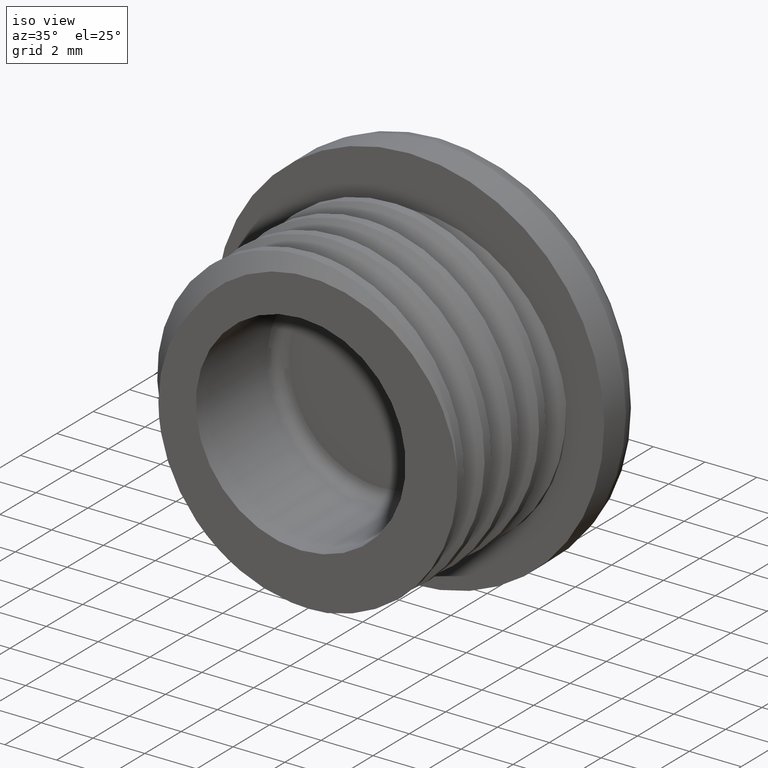
[diagram: clean part render]
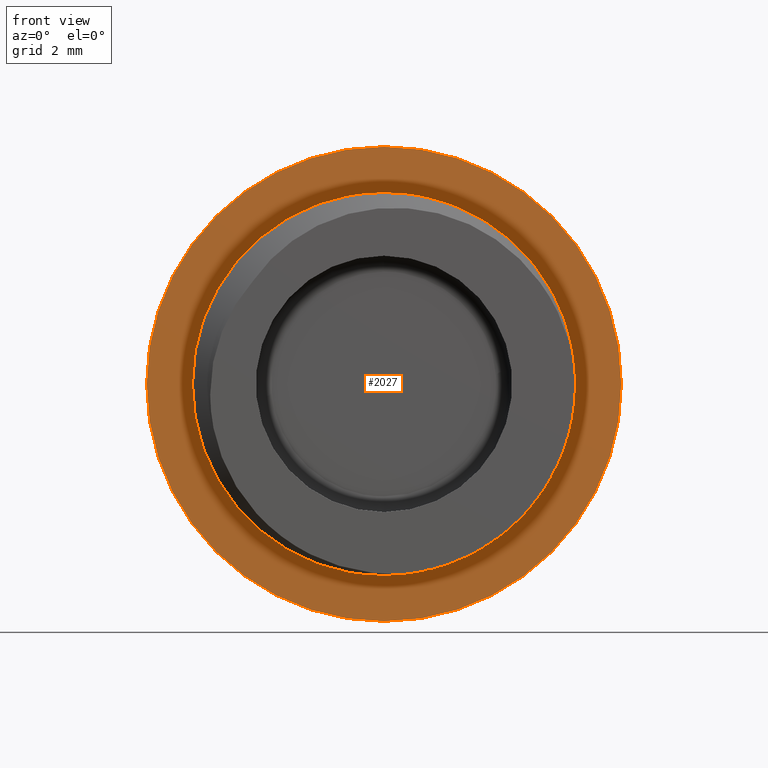
[diagram: tour spotlight — one face highlighted and labeled with its STEP entity id]
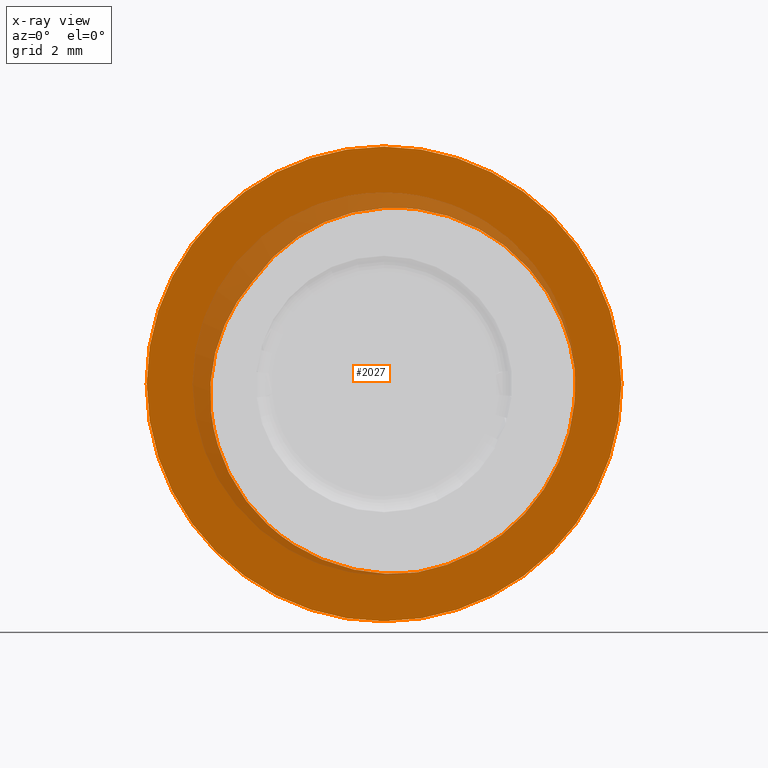
[diagram: x-ray of the same camera — body ghosted, this tour face saturated]
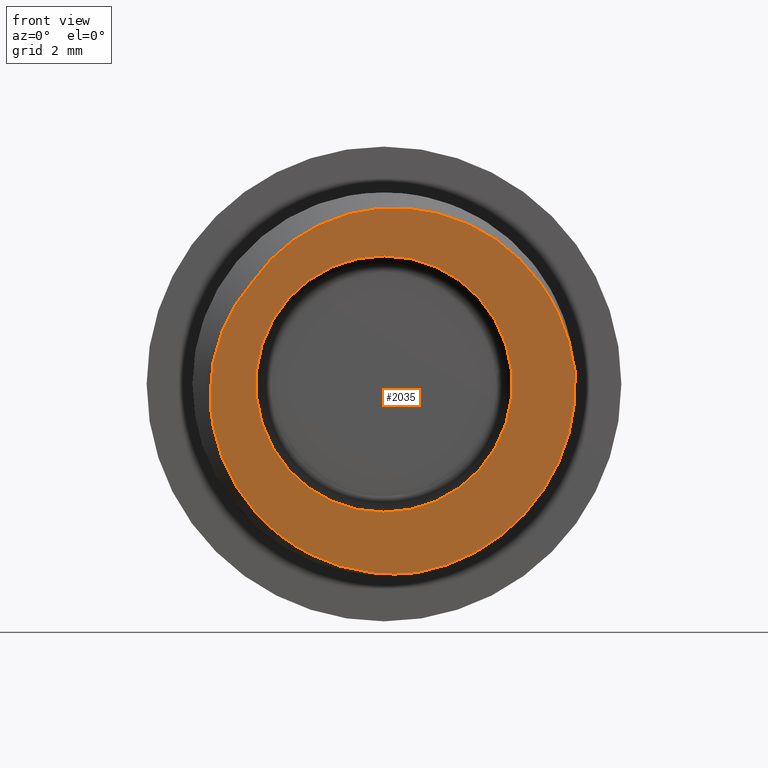
[diagram: tour spotlight — one face highlighted and labeled with its STEP entity id]
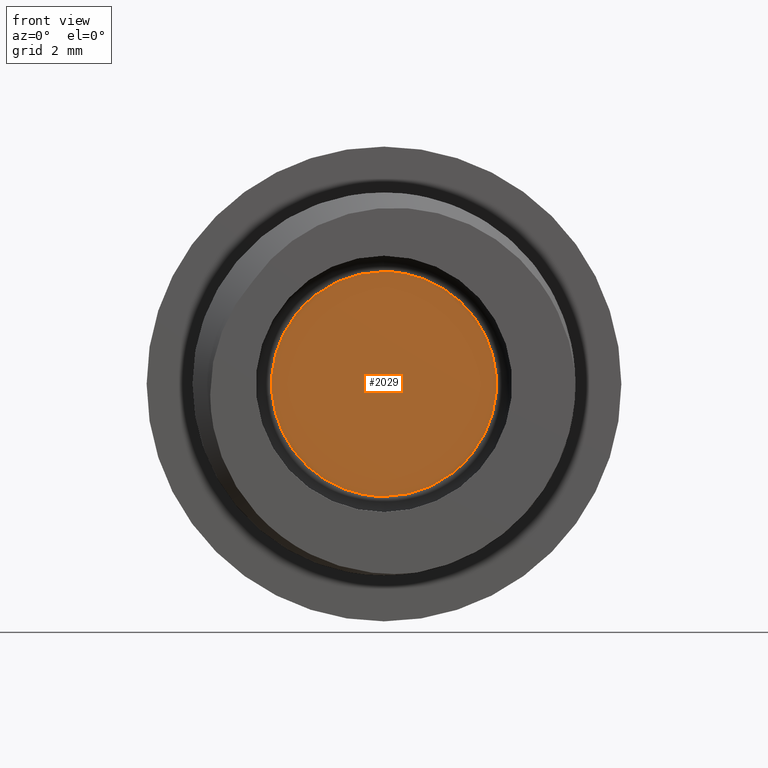
[diagram: tour spotlight — one face highlighted and labeled with its STEP entity id]
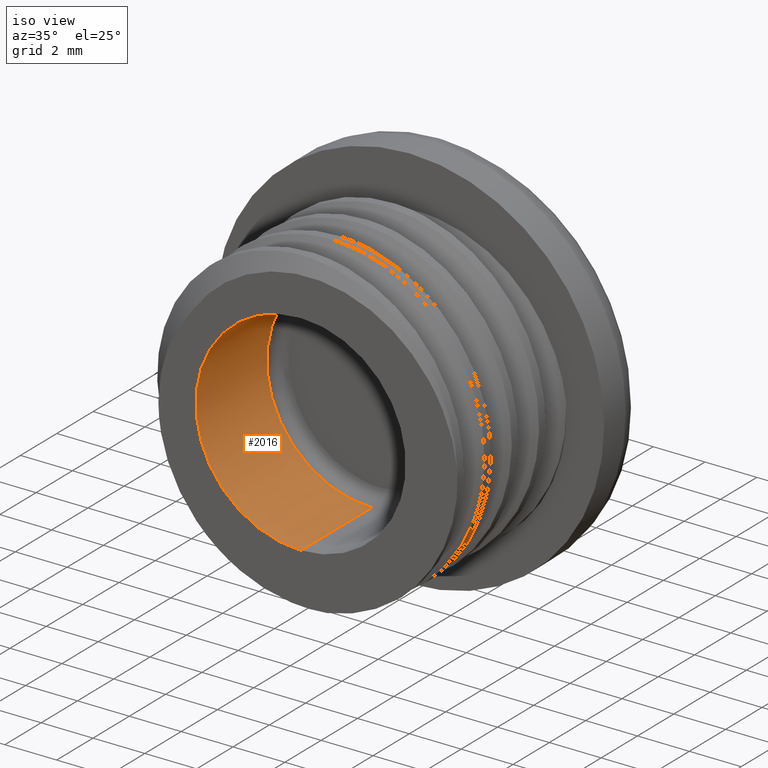
[diagram: tour spotlight — one face highlighted and labeled with its STEP entity id]
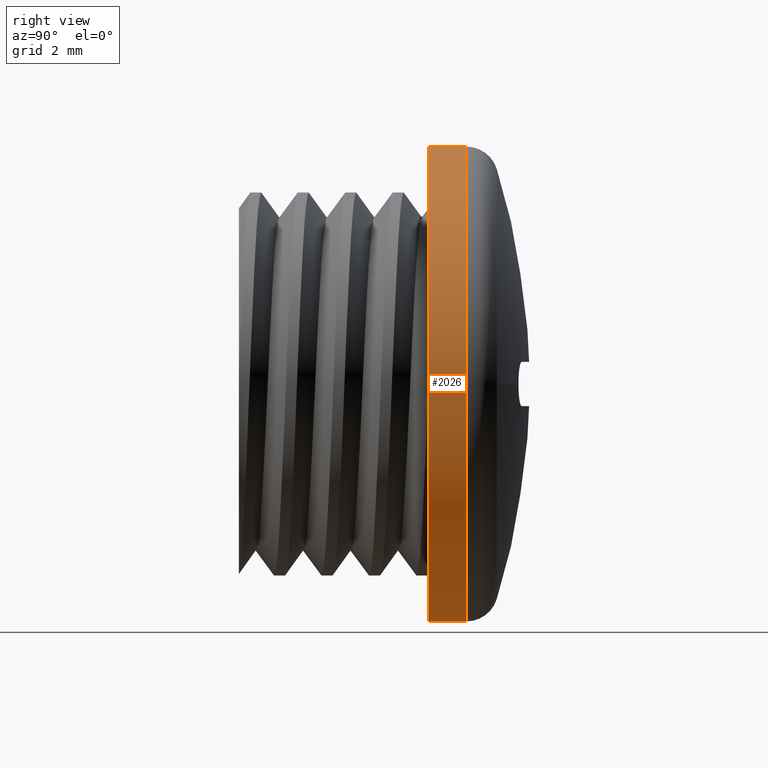
[diagram: tour spotlight — one face highlighted and labeled with its STEP entity id]
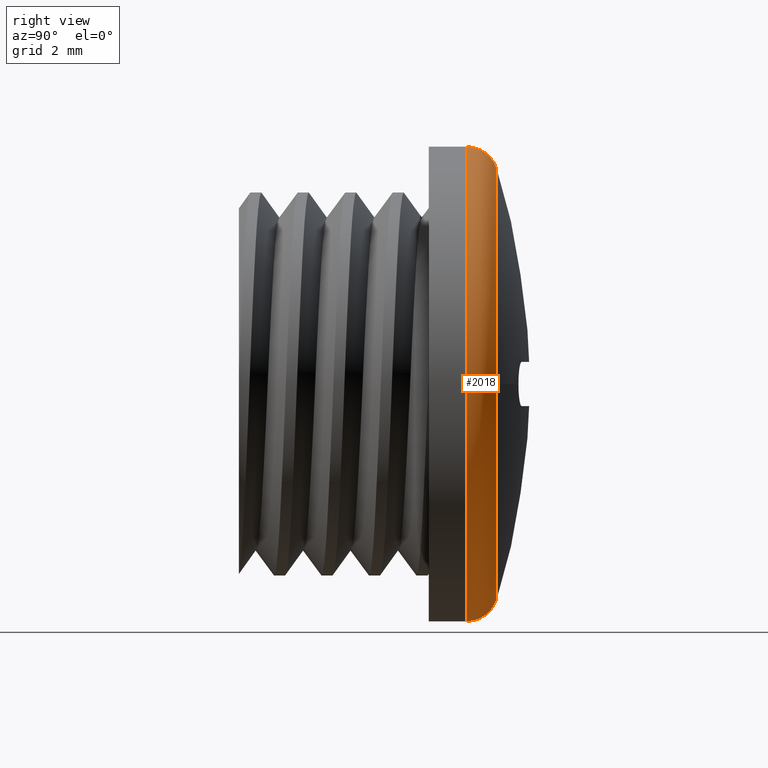
[diagram: tour spotlight — one face highlighted and labeled with its STEP entity id]
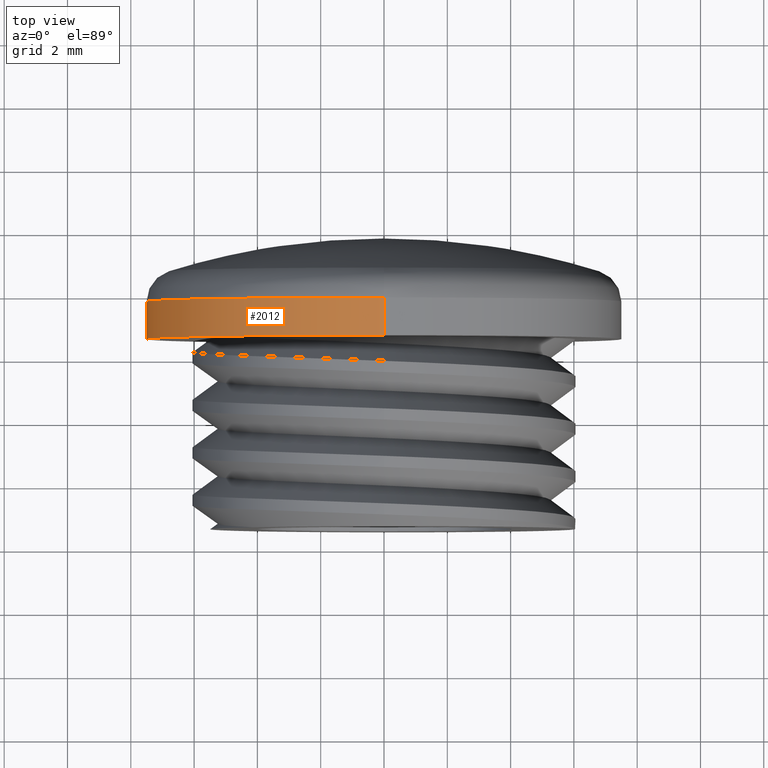
[diagram: tour spotlight — one face highlighted and labeled with its STEP entity id]
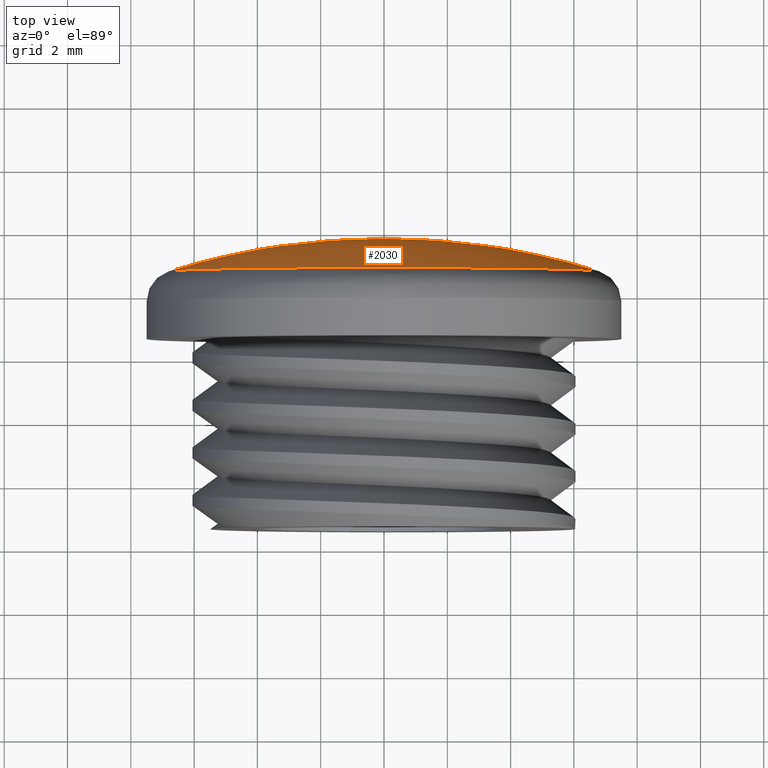
[diagram: tour spotlight — one face highlighted and labeled with its STEP entity id]
A machine part: a face-by-face anatomy tour. The part has 33 B-rep faces; the first image is the clean iso view, then the 8 largest visible faces are spotlighted one at a time (largest first), each with its STEP entity span.

Face 1 — front view, entity #2027. An x-ray twin of the same camera follows (body ghosted, this face saturated) — the face is partly hidden behind the body. In plain terms, the highlighted planar face has unit normal (0, 1, 0).
Definition (entity closure, byte-faithful):
#744 = CARTESIAN_POINT ( 'NONE',  ( 1.333294965067350200, 6.590691688707115900, 5.483423263777029700 ) ) ;
#745 = CARTESIAN_POINT ( 'NONE',  ( 5.795538344469927800, 6.590691688707117600, 1.533925454436706000 ) ) ;
#747 = CARTESIAN_POINT ( 'NONE',  ( -3.822090299627287200, 6.590691688707115900, 3.716164467503044300 ) ) ;
#748 = CARTESIAN_POINT ( 'NONE',  ( -2.515135730883103300, 6.590691688707111400, 4.814636179849642900 ) ) ;
#749 = CARTESIAN_POINT ( 'NONE',  ( 0.7710443965754647500, 6.590691688707112300, 5.556993491659310900 ) ) ;
#750 = CARTESIAN_POINT ( 'NONE',  ( 3.892880710968242400, 6.590691688707115900, 4.308731098354294400 ) ) ;
#751 = CARTESIAN_POINT ( 'NONE',  ( 4.317524157335197900, 6.590691688707116700, 3.928219728145486900 ) ) ;
#753 = CARTESIAN_POINT ( 'NONE',  ( 5.059396622125179400, 6.590691688707089200, 3.072985233296045200 ) ) ;
#759 = DIRECTION ( 'NONE',  ( 0.0000000000000000000, 0.0000000000000000000, -1.000000000000000000 ) ) ;
#760 = CARTESIAN_POINT ( 'NONE',  ( -0.3681019342657805300, 6.590691688707143400, 5.533813531403192000 ) ) ;
#761 = CARTESIAN_POINT ( 'NONE',  ( 5.945367409140039200, 6.590691688707115000, 0.9840475259458929500 ) ) ;
#766 = CARTESIAN_POINT ( 'NONE',  ( -0.08622572871762510000, 6.590691688707117600, 5.561155691514286100 ) ) ;
#768 = CARTESIAN_POINT ( 'NONE',  ( -3.428543558980571900, 6.590691688707113200, 4.123219336438431500 ) ) ;
#769 = CARTESIAN_POINT ( 'NONE',  ( 1.610470942510144700, 6.590691688707115000, 5.425858650025333000 ) ) ;
#773 = CARTESIAN_POINT ( 'NONE',  ( -0.9256121062986159000, 6.590691688707141600, 5.434871062550588900 ) ) ;
#774 = CARTESIAN_POINT ( 'NONE',  ( -1.203019363636066400, 6.590691688707115900, 5.362953169660063000 ) ) ;
#775 = CARTESIAN_POINT ( 'NONE',  ( -2.013496310423743100, 6.590691688707115900, 5.082402316098972900 ) ) ;
#776 = CARTESIAN_POINT ( 'NONE',  ( 6.000911325096898200, 6.590691688707115900, 0.7015146578740130100 ) ) ;
#779 = CARTESIAN_POINT ( 'NONE',  ( 0.4835883096104576800, 6.590691688707115900, 5.572862420474989700 ) ) ;
#780 = CARTESIAN_POINT ( 'NONE',  ( 6.035621355096567200, 6.590691688707115000, 0.4168631165050018000 ) ) ;
#781 = DIRECTION ( 'NONE',  ( -0.0000000000000000000, -1.000000000000000000, -0.0000000000000000000 ) ) ;
#783 = CARTESIAN_POINT ( 'NONE',  ( 2.427418205258931500, 6.590691688707121200, 5.168454765906097300 ) ) ;
#786 = CARTESIAN_POINT ( 'NONE',  ( 2.156862196389060000, 6.590691688707115000, 5.268843746551910500 ) ) ;
#788 = CARTESIAN_POINT ( 'NONE',  ( 2.943363374780066300, 6.590691688707120300, 4.931473932495026500 ) ) ;
#789 = CARTESIAN_POINT ( 'NONE',  ( 0.4767332268734920100, 6.590691688707115900, -6.027460733374892900 ) ) ;
#792 = CARTESIAN_POINT ( 'NONE',  ( -4.147533417366705800, 6.590691688707116700, 3.242958517323983900 ) ) ;
#793 = CARTESIAN_POINT ( 'NONE',  ( 1.046562144374508300, 6.590691688707116700, -5.958792468106455700 ) ) ;
#794 = CARTESIAN_POINT ( 'NONE',  ( 0.0000000000000000000, 6.590691688707115900, 0.0000000000000000000 ) ) ;
#795 = CARTESIAN_POINT ( 'NONE',  ( 4.514346988828728900, 6.590691688707089200, 3.724370172964536000 ) ) ;
#797 = CARTESIAN_POINT ( 'NONE',  ( 3.190789975114911600, 6.590691688707113200, 4.794530856048763400 ) ) ;
#798 = CARTESIAN_POINT ( 'NONE',  ( 3.664689111942991900, 6.590691688707113200, 4.483980680657696300 ) ) ;
#799 = CARTESIAN_POINT ( 'NONE',  ( 5.364009781552704600, 6.590691688707114100, 2.579319453001699200 ) ) ;
#800 = CARTESIAN_POINT ( 'NONE',  ( 5.701601542404997500, 6.590691688707115900, 1.801022737224252400 ) ) ;
#801 = CARTESIAN_POINT ( 'NONE',  ( -5.418655082583039300, 6.590691688707116700, -1.258696964857538800 ) ) ;
#802 = CARTESIAN_POINT ( 'NONE',  ( -5.261892450653936000, 6.590691688707110500, 1.272915754200655900 ) ) ;
#805 = CARTESIAN_POINT ( 'NONE',  ( -1.753212765986236200, 6.590691688707115900, -5.637592657702938000 ) ) ;
#806 = CARTESIAN_POINT ( 'NONE',  ( -3.881901349614701200, 6.590691688707117600, -4.254933638930080700 ) ) ;
#807 = CARTESIAN_POINT ( 'NONE',  ( -0.9315806894199528700, 6.590691688707115000, -5.878191781287800800 ) ) ;
#808 = CARTESIAN_POINT ( 'NONE',  ( -3.244317848646373700, 6.590691688707117600, -4.816245778005123800 ) ) ;
#809 = CARTESIAN_POINT ( 'NONE',  ( -5.294758413213608100, 6.590691688707116700, -1.813559088695089400 ) ) ;
#810 = CARTESIAN_POINT ( 'NONE',  ( -2.524323389836862200, 6.590691688707117600, -5.283636220357985600 ) ) ;
#811 = CARTESIAN_POINT ( 'NONE',  ( -4.147533417366705800, 6.590691688707116700, 3.242958517323983900 ) ) ;
#814 = CARTESIAN_POINT ( 'NONE',  ( -4.831701580854220500, 6.590691688707118500, 2.334076269947546600 ) ) ;
#817 = CARTESIAN_POINT ( 'NONE',  ( -0.08908530659348369600, 6.590691688707113200, -6.016964204237069700 ) ) ;
#818 = CARTESIAN_POINT ( 'NONE',  ( -4.880378072715417100, 6.590691688707112300, -2.874946076253846800 ) ) ;
#821 = CARTESIAN_POINT ( 'NONE',  ( -4.528526544215804300, 6.590691688707117600, 2.812715320824375800 ) ) ;
#824 = CARTESIAN_POINT ( 'NONE',  ( -5.003208019672817000, 6.590691688707117600, -2.619966405177630400 ) ) ;
#827 = CARTESIAN_POINT ( 'NONE',  ( -3.466085316116987800, 6.590691688707116700, -4.639124568342858800 ) ) ;
#830 = CARTESIAN_POINT ( 'NONE',  ( -5.459198598145863300, 6.590691688707122100, -0.9783859338851537100 ) ) ;
#831 = CARTESIAN_POINT ( 'NONE',  ( -4.596744028863471800, 6.590691688707113200, -3.365260366505920000 ) ) ;
#832 = CARTESIAN_POINT ( 'NONE',  ( -4.434737786691715500, 6.590691688707117600, -3.602057687231706900 ) ) ;
#833 = CARTESIAN_POINT ( 'NONE',  ( -4.076169192242400800, 6.590691688707116700, -4.048100833600527100 ) ) ;
#834 = CARTESIAN_POINT ( 'NONE',  ( -5.497680573991218000, 6.590691688707121200, -0.4120314599989919300 ) ) ;
#835 = CARTESIAN_POINT ( 'NONE',  ( -5.495563773654545500, 6.590691688707106100, -0.1233751083295873800 ) ) ;
#836 = CARTESIAN_POINT ( 'NONE',  ( -2.015573616485173400, 6.590691688707115900, -5.532155859686685800 ) ) ;
#837 = CARTESIAN_POINT ( 'NONE',  ( -5.210380785036420500, 6.590691688707116700, -2.090096633453142800 ) ) ;
#842 = CARTESIAN_POINT ( 'NONE',  ( -5.170691631850489000, 6.590691688707115900, 1.544117606924583700 ) ) ;
#843 = CARTESIAN_POINT ( 'NONE',  ( -1.212386830438458400, 6.590691688707117600, -5.810508361329772800 ) ) ;
#851 = CARTESIAN_POINT ( 'NONE',  ( -2.772148633460569800, 6.590691688707117600, -5.139550678664928500 ) ) ;
#855 = CARTESIAN_POINT ( 'NONE',  ( -5.399431474689390800, 6.590691688707109600, 0.7238366190391822800 ) ) ;
#859 = CARTESIAN_POINT ( 'NONE',  ( -5.446351150528043300, 6.590691688707105200, 0.4446181503025695700 ) ) ;
#1098 = CARTESIAN_POINT ( 'NONE',  ( 0.0000000000000000000, 6.590691688707115900, 0.0000000000000000000 ) ) ;
#1118 = DIRECTION ( 'NONE',  ( 0.0000000000000000000, 0.0000000000000000000, -1.000000000000000000 ) ) ;
#1126 = DIRECTION ( 'NONE',  ( 0.0000000000000000000, 1.000000000000000000, 0.0000000000000000000 ) ) ;
#1462 = FACE_BOUND ( 'NONE', #1593, .T. ) ;
#1471 = FACE_OUTER_BOUND ( 'NONE', #1662, .T. ) ;
#1480 = CARTESIAN_POINT ( 'NONE',  ( -6.049999999999999800, 6.590691688707115900, 0.0000000000000000000 ) ) ;
#1489 = DIRECTION ( 'NONE',  ( 0.0000000000000000000, -0.0000000000000000000, 1.000000000000000000 ) ) ;
#1494 = PLANE ( 'NONE',  #2190 ) ;
#1498 = DIRECTION ( 'NONE',  ( 0.0000000000000000000, 1.000000000000000000, 0.0000000000000000000 ) ) ;
#1593 = EDGE_LOOP ( 'NONE', ( #1721, #1685, #1768 ) ) ;
#1662 = EDGE_LOOP ( 'NONE', ( #1765, #1709 ) ) ;
#1685 = ORIENTED_EDGE ( 'NONE', *, *, #1936, .F. ) ;
#1709 = ORIENTED_EDGE ( 'NONE', *, *, #1968, .F. ) ;
#1721 = ORIENTED_EDGE ( 'NONE', *, *, #1938, .T. ) ;
#1765 = ORIENTED_EDGE ( 'NONE', *, *, #1932, .F. ) ;
#1768 = ORIENTED_EDGE ( 'NONE', *, *, #1940, .T. ) ;
#1778 = VERTEX_POINT ( 'NONE', #1860 ) ;
#1819 = VERTEX_POINT ( 'NONE', #1828 ) ;
#1822 = VERTEX_POINT ( 'NONE', #1833 ) ;
#1828 = CARTESIAN_POINT ( 'NONE',  ( -4.147533417366705800, 6.590691688707116700, 3.242958517323983900 ) ) ;
#1833 = CARTESIAN_POINT ( 'NONE',  ( 6.035621355096567200, 6.590691688707115000, 0.4168631165050018000 ) ) ;
#1847 = VERTEX_POINT ( 'NONE', #1870 ) ;
#1858 = VERTEX_POINT ( 'NONE', #1874 ) ;
#1860 = CARTESIAN_POINT ( 'NONE',  ( 0.0000000000000000000, 6.590691688707115900, -7.500000000000000000 ) ) ;
#1870 = CARTESIAN_POINT ( 'NONE',  ( 1.046562144374508300, 6.590691688707116700, -5.958792468106455700 ) ) ;
#1874 = CARTESIAN_POINT ( 'NONE',  ( 9.184850993605147900E-016, 6.590691688707115900, 7.500000000000000000 ) ) ;
#1905 = CARTESIAN_POINT ( 'NONE',  ( 0.0000000000000000000, 6.590691688707115900, 0.0000000000000000000 ) ) ;
#1907 = DIRECTION ( 'NONE',  ( 0.0000000000000000000, 1.000000000000000000, 0.0000000000000000000 ) ) ;
#1909 = DIRECTION ( 'NONE',  ( 0.0000000000000000000, 0.0000000000000000000, -1.000000000000000000 ) ) ;
#1919 = B_SPLINE_CURVE_WITH_KNOTS ( 'NONE', 3,
 ( #792, #747, #768, #748, #775, #774, #773, #760, #766, #779, #749, #744, #769, #786, #783, #788, #797, #798, #750, #751, #795, #753, #799, #800, #745, #761, #776, #780 ),
 .UNSPECIFIED., .F., .F.,
 ( 4, 2, 2, 2, 2, 2, 2, 2, 2, 2, 2, 2, 2, 4 ),
 ( 4.336808689942017300E-019, 0.001698569601100273800, 0.003397139202200547100, 0.004246424002750682900, 0.005095708803300819100, 0.005944993603850954500, 0.006794278404401090700, 0.007643563204951227800, 0.008492848005501364000, 0.009342132806051501100, 0.01019141760660163800, 0.01188998720770191400, 0.01273927200825205100, 0.01358855680880219000 ),
 .UNSPECIFIED. ) ;
#1920 = B_SPLINE_CURVE_WITH_KNOTS ( 'NONE', 3,
 ( #793, #789, #817, #807, #843, #805, #836, #810, #851, #808, #827, #806, #833, #832, #831, #818, #824, #837, #809, #801, #830, #834, #835, #859, #855, #802, #842, #814, #821, #811 ),
 .UNSPECIFIED., .F., .F.,
 ( 4, 2, 2, 2, 2, 2, 2, 2, 2, 2, 2, 2, 2, 2, 4 ),
 ( 6.288372600415925700E-018, 0.001696874869876430300, 0.002545312304814642400, 0.003393749739752854200, 0.004242187174691066000, 0.005090624609629279500, 0.005939062044567492200, 0.006787499479505706600, 0.007635936914443919300, 0.008484374349382133700, 0.009332811784320348100, 0.01018124921925856100, 0.01102968665419677500, 0.01187812408913498800, 0.01357499895901141700 ),
 .UNSPECIFIED. ) ;
#1932 = EDGE_CURVE ( 'NONE', #1778, #1858, #2090, .T. ) ;
#1936 = EDGE_CURVE ( 'NONE', #1847, #1822, #2095, .T. ) ;
#1938 = EDGE_CURVE ( 'NONE', #1819, #1822, #1919, .T. ) ;
#1940 = EDGE_CURVE ( 'NONE', #1847, #1819, #1920, .T. ) ;
#1968 = EDGE_CURVE ( 'NONE', #1858, #1778, #2135, .T. ) ;
#2027 = ADVANCED_FACE ( 'NONE', ( #1462, #1471 ), #1494, .F. ) ;
#2087 = AXIS2_PLACEMENT_3D ( 'NONE', #1905, #1907, #1909 ) ;
#2090 = CIRCLE ( 'NONE', #2087, 7.500000000000000000 ) ;
#2095 = CIRCLE ( 'NONE', #2096, 6.049999999999999800 ) ;
#2096 = AXIS2_PLACEMENT_3D ( 'NONE', #794, #781, #759 ) ;
#2106 = AXIS2_PLACEMENT_3D ( 'NONE', #1098, #1126, #1118 ) ;
#2135 = CIRCLE ( 'NONE', #2106, 7.500000000000000000 ) ;
#2190 = AXIS2_PLACEMENT_3D ( 'NONE', #1480, #1498, #1489 ) ;

Face 2 — front view, entity #2035. In plain terms, the highlighted planar face has unit normal (0, -1, 0).
Definition (entity closure, byte-faithful):
#442 = CARTESIAN_POINT ( 'NONE',  ( 0.0000000000000000000, 0.5900000000000000800, 0.0000000000000000000 ) ) ;
#464 = DIRECTION ( 'NONE',  ( 0.0000000000000000000, -1.000000000000000000, 0.0000000000000000000 ) ) ;
#471 = PLANE ( 'NONE',  #2174 ) ;
#481 = FACE_BOUND ( 'NONE', #1641, .T. ) ;
#490 = FACE_OUTER_BOUND ( 'NONE', #1595, .T. ) ;
#494 = DIRECTION ( 'NONE',  ( 0.0000000000000000000, -0.0000000000000000000, -1.000000000000000000 ) ) ;
#755 = CARTESIAN_POINT ( 'NONE',  ( 6.036836665114376100, 0.5900000000000063000, 0.3988772727678713800 ) ) ;
#756 = CARTESIAN_POINT ( 'NONE',  ( 5.821922576552339000, 0.5900000000000003000, 1.515754007052550400 ) ) ;
#757 = CARTESIAN_POINT ( 'NONE',  ( 4.890610818338101000, 0.5899999999999938600, 3.271530149698044000 ) ) ;
#758 = CARTESIAN_POINT ( 'NONE',  ( 4.528139595793270200, 0.5899999999999940800, 3.707990125687147900 ) ) ;
#762 = CARTESIAN_POINT ( 'NONE',  ( 5.969066935817145300, 0.5899999999999997500, 0.9690293168079625600 ) ) ;
#763 = CARTESIAN_POINT ( 'NONE',  ( 4.328610320313083900, 0.5899999999999994100, 3.915900809560479300 ) ) ;
#764 = CARTESIAN_POINT ( 'NONE',  ( 3.680964256386002100, 0.5900000000000391600, 4.470870586471617600 ) ) ;
#767 = CARTESIAN_POINT ( 'NONE',  ( 3.209105155121444200, 0.5900000000000391600, 4.782622586091631200 ) ) ;
#770 = CARTESIAN_POINT ( 'NONE',  ( 2.961266394368026000, 0.5900000000000000800, 4.921203494094922500 ) ) ;
#771 = CARTESIAN_POINT ( 'NONE',  ( 3.904973507147602600, 0.5899999999999993000, 4.297683389820721600 ) ) ;
#772 = CARTESIAN_POINT ( 'NONE',  ( 2.440723674722062900, 0.5900000000000000800, 5.162254948441926700 ) ) ;
#777 = CARTESIAN_POINT ( 'NONE',  ( 5.351987993593202700, 0.5899999999999998600, 2.557506220367439500 ) ) ;
#782 = CARTESIAN_POINT ( 'NONE',  ( 5.055390152376204100, 0.5899999999999998600, 3.041440326496972700 ) ) ;
#784 = CARTESIAN_POINT ( 'NONE',  ( 2.173613788145651400, 0.5899999999999979700, 5.262024381218544100 ) ) ;
#785 = CARTESIAN_POINT ( 'NONE',  ( 1.629882343950281600, 0.5899999999999979700, 5.420256731879488800 ) ) ;
#790 = CARTESIAN_POINT ( 'NONE',  ( 5.484640443325919700, 0.5900000000000004100, 2.301436807465414800 ) ) ;
#791 = CARTESIAN_POINT ( 'NONE',  ( 1.352663892316172700, 0.5899999999999989700, 5.478992460428503200 ) ) ;
#803 = CARTESIAN_POINT ( 'NONE',  ( -1.987466183038800500, 0.5899999999999990800, 5.068511063654371500 ) ) ;
#804 = CARTESIAN_POINT ( 'NONE',  ( -3.897803387318181200, 0.5900000000000148500, -4.240062443806348100 ) ) ;
#812 = CARTESIAN_POINT ( 'NONE',  ( -2.488557611447046500, 0.5899999999999991900, 4.802951554311430700 ) ) ;
#813 = CARTESIAN_POINT ( 'NONE',  ( -4.138008830249748200, 0.5900000000000016300, 3.255103118801742300 ) ) ;
#815 = CARTESIAN_POINT ( 'NONE',  ( -0.3493916958535061000, 0.5900000000000016300, 5.535204704363723100 ) ) ;
#816 = CARTESIAN_POINT ( 'NONE',  ( 0.7872855207941911200, 0.5899999999999990800, 5.554804422135252800 ) ) ;
#819 = CARTESIAN_POINT ( 'NONE',  ( -5.257374285143514600, 0.5899999999999948600, 1.290710653147852300 ) ) ;
#820 = CARTESIAN_POINT ( 'NONE',  ( -0.9091067427216145100, 0.5900000000000016300, 5.437755311897559500 ) ) ;
#822 = CARTESIAN_POINT ( 'NONE',  ( -3.416086266484814200, 0.5900000000000001900, 4.133320861586614800 ) ) ;
#823 = CARTESIAN_POINT ( 'NONE',  ( -5.498900937243330000, 0.5900000000000023000, -0.3932831303897143000 ) ) ;
#825 = CARTESIAN_POINT ( 'NONE',  ( -5.462378101001049500, 0.5900000000000024100, -0.9592472982626215600 ) ) ;
#826 = CARTESIAN_POINT ( 'NONE',  ( -1.727649603319785500, 0.5900000000000003000, 5.181175702128936900 ) ) ;
#828 = CARTESIAN_POINT ( 'NONE',  ( 0.4994837956236575800, 0.5899999999999739900, 5.571359021854537000 ) ) ;
#829 = CARTESIAN_POINT ( 'NONE',  ( -1.189275947109030600, 0.5900000000000005200, 5.365843482094607700 ) ) ;
#838 = CARTESIAN_POINT ( 'NONE',  ( -4.824093481931830900, 0.5900000000000001900, 2.349304993163085600 ) ) ;
#839 = CARTESIAN_POINT ( 'NONE',  ( -5.165261145401560200, 0.5900000000000003000, 1.561497146290873300 ) ) ;
#840 = CARTESIAN_POINT ( 'NONE',  ( -5.396809796046601300, 0.5899999999999950800, 0.7420480307684493800 ) ) ;
#841 = CARTESIAN_POINT ( 'NONE',  ( -5.495911240440607400, 0.5899999999999993000, -0.1057434573459113000 ) ) ;
#844 = CARTESIAN_POINT ( 'NONE',  ( -5.300439950719841400, 0.5900000000000003000, -1.796620061944596400 ) ) ;
#845 = CARTESIAN_POINT ( 'NONE',  ( -3.810682909987799200, 0.5900000000000005200, 3.728020660404995900 ) ) ;
#846 = CARTESIAN_POINT ( 'NONE',  ( -5.422816559957263700, 0.5900000000000001900, -1.239928796507371100 ) ) ;
#847 = CARTESIAN_POINT ( 'NONE',  ( -5.217127081620002800, 0.5899999999999995200, -2.072609452356351000 ) ) ;
#848 = CARTESIAN_POINT ( 'NONE',  ( -2.731845668371897700, 0.5899999999999999700, 4.648449713066866300 ) ) ;
#849 = CARTESIAN_POINT ( 'NONE',  ( -5.012444595960044300, 0.5899999999999995200, -2.601565993294770800 ) ) ;
#850 = CARTESIAN_POINT ( 'NONE',  ( -4.890659777242102100, 0.5899999999999998600, -2.856959270208727200 ) ) ;
#852 = CARTESIAN_POINT ( 'NONE',  ( -4.519807008836641800, 0.5900000000000016300, 2.826445878513559300 ) ) ;
#853 = CARTESIAN_POINT ( 'NONE',  ( -5.444733412008575100, 0.5899999999999991900, 0.4628059297968018500 ) ) ;
#854 = CARTESIAN_POINT ( 'NONE',  ( -4.608072159565493200, 0.5899999999999997500, -3.349514707442315500 ) ) ;
#856 = CARTESIAN_POINT ( 'NONE',  ( -4.445712708352043100, 0.5899999999999990800, -3.588293318611675400 ) ) ;
#857 = CARTESIAN_POINT ( 'NONE',  ( -4.090817180397282400, 0.5899999999999989700, -4.032896164381630100 ) ) ;
#858 = CARTESIAN_POINT ( 'NONE',  ( -4.138008830249748200, 0.5900000000000016300, 3.255103118801742300 ) ) ;
#860 = CARTESIAN_POINT ( 'NONE',  ( -0.06763158014773934500, 0.5899999999999738800, 5.561428643842069700 ) ) ;
#863 = CARTESIAN_POINT ( 'NONE',  ( -1.774006093517159300, 0.5899999999999997500, -5.630914751144775500 ) ) ;
#864 = CARTESIAN_POINT ( 'NONE',  ( -2.544499409511809000, 0.5900000000000004100, -5.273559891919910000 ) ) ;
#865 = CARTESIAN_POINT ( 'NONE',  ( -0.3940142496733479700, 0.5899999999999658900, -5.968746079691809000 ) ) ;
#866 = CARTESIAN_POINT ( 'NONE',  ( 0.4569536285924925600, 0.5900000000000011900, -6.008629707231945900 ) ) ;
#869 = CARTESIAN_POINT ( 'NONE',  ( -2.037011068725241600, 0.5900000000000004100, -5.523905644850780800 ) ) ;
#870 = CARTESIAN_POINT ( 'NONE',  ( -2.788981617492968900, 0.5899999999999998600, -5.130220974818203500 ) ) ;
#871 = CARTESIAN_POINT ( 'NONE',  ( -0.1122020578807460500, 0.5900000000000013000, -5.995358746917874600 ) ) ;
#879 = CARTESIAN_POINT ( 'NONE',  ( -3.258935390471613400, 0.5899999999999998600, -4.806256429916283300 ) ) ;
#880 = CARTESIAN_POINT ( 'NONE',  ( -0.9519802428314603200, 0.5899999999999657700, -5.874648377076338700 ) ) ;
#893 = CARTESIAN_POINT ( 'NONE',  ( -3.482852940862207100, 0.5900000000000148500, -4.626272760495684400 ) ) ;
#897 = CARTESIAN_POINT ( 'NONE',  ( 1.029316842820993300, 0.5899999999999998600, -5.961795605107996100 ) ) ;
#902 = CARTESIAN_POINT ( 'NONE',  ( -1.228765912102359300, 0.5899999999999997500, -5.807215561931736900 ) ) ;
#903 = CARTESIAN_POINT ( 'NONE',  ( 0.7445611787788908300, 0.5899999999999995200, -5.995285089515286700 ) ) ;
#1131 = CARTESIAN_POINT ( 'NONE',  ( 0.0000000000000000000, 0.5899999999999999700, 0.0000000000000000000 ) ) ;
#1165 = DIRECTION ( 'NONE',  ( -0.0000000000000000000, -1.000000000000000000, -0.0000000000000000000 ) ) ;
#1170 = DIRECTION ( 'NONE',  ( 0.0000000000000000000, 0.0000000000000000000, -1.000000000000000000 ) ) ;
#1342 = DIRECTION ( 'NONE',  ( 0.0000000000000000000, 0.0000000000000000000, -1.000000000000000000 ) ) ;
#1370 = DIRECTION ( 'NONE',  ( 0.0000000000000000000, 1.000000000000000000, 0.0000000000000000000 ) ) ;
#1378 = CARTESIAN_POINT ( 'NONE',  ( 0.0000000000000000000, 0.5900000000000000800, 0.0000000000000000000 ) ) ;
#1399 = CARTESIAN_POINT ( 'NONE',  ( 0.0000000000000000000, 0.5900000000000000800, 0.0000000000000000000 ) ) ;
#1426 = DIRECTION ( 'NONE',  ( 0.0000000000000000000, 1.000000000000000000, 0.0000000000000000000 ) ) ;
#1427 = DIRECTION ( 'NONE',  ( 0.0000000000000000000, 0.0000000000000000000, -1.000000000000000000 ) ) ;
#1595 = EDGE_LOOP ( 'NONE', ( #1705, #1729, #1746 ) ) ;
#1641 = EDGE_LOOP ( 'NONE', ( #1728, #1757 ) ) ;
#1705 = ORIENTED_EDGE ( 'NONE', *, *, #1941, .T. ) ;
#1728 = ORIENTED_EDGE ( 'NONE', *, *, #2015, .T. ) ;
#1729 = ORIENTED_EDGE ( 'NONE', *, *, #1983, .T. ) ;
#1746 = ORIENTED_EDGE ( 'NONE', *, *, #1939, .T. ) ;
#1751 = VERTEX_POINT ( 'NONE', #1832 ) ;
#1757 = ORIENTED_EDGE ( 'NONE', *, *, #2020, .T. ) ;
#1783 = VERTEX_POINT ( 'NONE', #1850 ) ;
#1794 = VERTEX_POINT ( 'NONE', #1856 ) ;
#1796 = VERTEX_POINT ( 'NONE', #1802 ) ;
#1802 = CARTESIAN_POINT ( 'NONE',  ( 4.959819536546779600E-016, 0.5900000000000000800, 4.049999999999999800 ) ) ;
#1814 = VERTEX_POINT ( 'NONE', #1816 ) ;
#1816 = CARTESIAN_POINT ( 'NONE',  ( -4.138008830249748200, 0.5900000000000016300, 3.255103118801742300 ) ) ;
#1832 = CARTESIAN_POINT ( 'NONE',  ( 1.029316842820993300, 0.5899999999999998600, -5.961795605107996100 ) ) ;
#1850 = CARTESIAN_POINT ( 'NONE',  ( 6.036836665114376100, 0.5900000000000063000, 0.3988772727678713800 ) ) ;
#1856 = CARTESIAN_POINT ( 'NONE',  ( 0.0000000000000000000, 0.5900000000000000800, -4.049999999999999800 ) ) ;
#1921 = B_SPLINE_CURVE_WITH_KNOTS ( 'NONE', 3,
 ( #813, #852, #838, #839, #819, #840, #853, #841, #823, #825, #846, #844, #847, #849, #850, #854, #856, #857, #804, #893, #879, #870, #864, #869, #863, #902, #880, #865, #871, #866, #903, #897 ),
 .UNSPECIFIED., .F., .F.,
 ( 4, 2, 2, 2, 2, 2, 2, 2, 2, 2, 2, 2, 2, 2, 2, 4 ),
 ( 0.0000000000000000000, 0.001697663963715754200, 0.002546495945573630900, 0.003395327927431507100, 0.004244159909289383300, 0.005092991891147260000, 0.005941823873005135800, 0.006790655854863012500, 0.007639487836720888200, 0.008488319818578763200, 0.009337151800436639000, 0.01018598378229451500, 0.01103481576415239100, 0.01188364774601026600, 0.01273247972786814200, 0.01358131170972601600 ),
 .UNSPECIFIED. ) ;
#1925 = B_SPLINE_CURVE_WITH_KNOTS ( 'NONE', 3,
 ( #755, #762, #756, #790, #777, #782, #757, #758, #763, #771, #764, #767, #770, #772, #784, #785, #791, #816, #828, #860, #815, #820, #829, #826, #803, #812, #848, #822, #845, #858 ),
 .UNSPECIFIED., .F., .F.,
 ( 4, 2, 2, 2, 2, 2, 2, 2, 2, 2, 2, 2, 2, 2, 4 ),
 ( 1.648176402579328500E-016, 0.001698045898434410900, 0.002547068847651534000, 0.003396091796868657000, 0.004245114746085780300, 0.005094137695302903200, 0.005943160644520026200, 0.006792183593737149100, 0.007641206542954272000, 0.008490229492171395800, 0.009339252441388518800, 0.01018827539060564200, 0.01103729833982276500, 0.01188632128903988800, 0.01358436718747413300 ),
 .UNSPECIFIED. ) ;
#1939 = EDGE_CURVE ( 'NONE', #1783, #1814, #1925, .T. ) ;
#1941 = EDGE_CURVE ( 'NONE', #1814, #1751, #1921, .T. ) ;
#1983 = EDGE_CURVE ( 'NONE', #1751, #1783, #2137, .T. ) ;
#2015 = EDGE_CURVE ( 'NONE', #1794, #1796, #2155, .T. ) ;
#2020 = EDGE_CURVE ( 'NONE', #1796, #1794, #2149, .T. ) ;
#2035 = ADVANCED_FACE ( 'NONE', ( #481, #490 ), #471, .T. ) ;
#2114 = AXIS2_PLACEMENT_3D ( 'NONE', #1131, #1165, #1170 ) ;
#2137 = CIRCLE ( 'NONE', #2114, 6.049999999999999800 ) ;
#2149 = CIRCLE ( 'NONE', #2187, 4.049999999999999800 ) ;
#2155 = CIRCLE ( 'NONE', #2160, 4.049999999999999800 ) ;
#2160 = AXIS2_PLACEMENT_3D ( 'NONE', #1378, #1370, #1342 ) ;
#2174 = AXIS2_PLACEMENT_3D ( 'NONE', #442, #464, #494 ) ;
#2187 = AXIS2_PLACEMENT_3D ( 'NONE', #1399, #1426, #1427 ) ;

Face 3 — front view, entity #2029. In plain terms, the highlighted planar face has unit normal (0, 1, 0).
Definition (entity closure, byte-faithful):
#975 = CARTESIAN_POINT ( 'NONE',  ( 3.518729361055971800, 5.000000000000000000, 0.5589316769960415200 ) ) ;
#976 = CARTESIAN_POINT ( 'NONE',  ( 3.427884956347416100, 5.000000000000001800, 0.9364485110792846200 ) ) ;
#979 = CARTESIAN_POINT ( 'NONE',  ( 1.763053308342519900, 4.999999999999999100, -3.119947388228049500 ) ) ;
#982 = CARTESIAN_POINT ( 'NONE',  ( 3.295551662267502700, 5.000000000000000900, -1.319873996589820300 ) ) ;
#983 = CARTESIAN_POINT ( 'NONE',  ( 2.912642502646690000, 5.000000000000000900, -2.056018152399505800 ) ) ;
#984 = CARTESIAN_POINT ( 'NONE',  ( 3.368853222917927300, 4.999999999999999100, 1.122496005789195500 ) ) ;
#985 = CARTESIAN_POINT ( 'NONE',  ( 1.280549416347723300, 5.000000000000001800, -3.311036750726096000 ) ) ;
#988 = CARTESIAN_POINT ( 'NONE',  ( 3.335934973434381900, 5.000000000000000900, 1.214842022561225100 ) ) ;
#989 = CARTESIAN_POINT ( 'NONE',  ( 3.321098070205260400, 4.999999999999999100, 1.254273658910037600 ) ) ;
#990 = CARTESIAN_POINT ( 'NONE',  ( 3.217415167481273200, 4.999999999999998200, -1.502915033895634300 ) ) ;
#991 = CARTESIAN_POINT ( 'NONE',  ( 3.306398502538545200, 4.999999999999999100, 1.292476309901062800 ) ) ;
#992 = CARTESIAN_POINT ( 'NONE',  ( 1.122622147386469700, 5.000000000000000000, -3.368803243336909500 ) ) ;
#993 = CARTESIAN_POINT ( 'NONE',  ( 3.119947388230396100, 4.999999999999999100, 1.763053308338925000 ) ) ;
#996 = CARTESIAN_POINT ( 'NONE',  ( 3.277835532049679500, 5.000000000000000900, -1.363367318736959000 ) ) ;
#998 = CARTESIAN_POINT ( 'NONE',  ( 3.289414261037802300, 5.000000000000001800, -1.335130861087121500 ) ) ;
#999 = CARTESIAN_POINT ( 'NONE',  ( 1.254313239054085000, 5.000000000000000000, -3.321082387836726800 ) ) ;
#1001 = CARTESIAN_POINT ( 'NONE',  ( 3.311044783158759100, 5.000000000000000900, 1.280529143591011800 ) ) ;
#1002 = CARTESIAN_POINT ( 'NONE',  ( 2.857400240683476900, 5.000000000000000000, 2.163258830659245700 ) ) ;
#1004 = CARTESIAN_POINT ( 'NONE',  ( 3.550130511474837800, 5.000000000000000000, -0.4521024567176941700 ) ) ;
#1009 = CARTESIAN_POINT ( 'NONE',  ( 8.673617379884035500E-016, 5.000000000000000000, -3.549999999999999800 ) ) ;
#1010 = CARTESIAN_POINT ( 'NONE',  ( 3.260222917313188300, 4.999999999999999100, -1.405563820719083900 ) ) ;
#1011 = CARTESIAN_POINT ( 'NONE',  ( 2.336643489476632600, 5.000000000000001800, 2.683714194488737300 ) ) ;
#1012 = CARTESIAN_POINT ( 'NONE',  ( 1.214909598416909400, 5.000000000000000900, -3.335908198658835000 ) ) ;
#1013 = CARTESIAN_POINT ( 'NONE',  ( 2.056017694891473000, 4.999999999999999100, 2.912642959891032400 ) ) ;
#1014 = CARTESIAN_POINT ( 'NONE',  ( 1.693187951324076200, 5.000000000000000000, 3.124953415630258300 ) ) ;
#1016 = CARTESIAN_POINT ( 'NONE',  ( 2.683713933206254500, 4.999999999999999100, -2.336643750909796600 ) ) ;
#1018 = CARTESIAN_POINT ( 'NONE',  ( 3.124953072697001800, 4.999999999999999100, -1.693188294455102400 ) ) ;
#1019 = CARTESIAN_POINT ( 'NONE',  ( 3.549934744262582200, 4.999999999999999100, 0.2260512283588307100 ) ) ;
#1020 = CARTESIAN_POINT ( 'NONE',  ( 1.502914833735866200, 4.999999999999999100, 3.217415367525675100 ) ) ;
#1021 = CARTESIAN_POINT ( 'NONE',  ( 1.405563713490631600, 4.999999999999999100, 3.260223024479834000 ) ) ;
#1022 = CARTESIAN_POINT ( 'NONE',  ( 1.363367255931720900, 5.000000000000001800, 3.277835594818713400 ) ) ;
#1025 = CARTESIAN_POINT ( 'NONE',  ( 0.2262159847307808100, 5.000000000000000900, -3.549869464809825500 ) ) ;
#1026 = CARTESIAN_POINT ( 'NONE',  ( 0.9366647538174617300, 5.000000000000000900, -3.427799277065674200 ) ) ;
#1027 = CARTESIAN_POINT ( 'NONE',  ( 1.292476309900957700, 5.000000000000000900, -3.306398502538619300 ) ) ;
#1029 = CARTESIAN_POINT ( 'NONE',  ( 0.5592200006469454400, 5.000000000000000000, -3.518615122013645900 ) ) ;
#1030 = CARTESIAN_POINT ( 'NONE',  ( 3.467046276903522600, 4.999999999999998200, -0.8863273342993770500 ) ) ;
#1032 = CARTESIAN_POINT ( 'NONE',  ( 2.163259353224207300, 4.999999999999999100, -2.857399717817156800 ) ) ;
#1039 = CARTESIAN_POINT ( 'NONE',  ( 0.8873147839964845600, 5.000000000000000000, 3.466655388309408400 ) ) ;
#1050 = CARTESIAN_POINT ( 'NONE',  ( 1.319843138786779100, 4.999999999999999100, 3.295563877536070900 ) ) ;
#1061 = CARTESIAN_POINT ( 'NONE',  ( 0.4517360443482693100, 5.000000000000000000, 3.549739232052199900 ) ) ;
#1065 = CARTESIAN_POINT ( 'NONE',  ( 1.335130828918581700, 4.999999999999999100, 3.289414293187797000 ) ) ;
#1073 = CARTESIAN_POINT ( 'NONE',  ( 0.0000000000000000000, 5.000000000000000000, 3.549999999999999800 ) ) ;
#1386 = CARTESIAN_POINT ( 'NONE',  ( -2.163259353222597400, 5.000000000000000900, 2.857399717818977200 ) ) ;
#1387 = CARTESIAN_POINT ( 'NONE',  ( -3.467046276903899700, 4.999999999999999100, 0.8863273342963518000 ) ) ;
#1388 = CARTESIAN_POINT ( 'NONE',  ( -1.292476309900976600, 5.000000000000000000, 3.306398502538598000 ) ) ;
#1389 = CARTESIAN_POINT ( 'NONE',  ( -3.277835532049868700, 4.999999999999999100, 1.363367318736751000 ) ) ;
#1391 = CARTESIAN_POINT ( 'NONE',  ( -3.289414261037898700, 5.000000000000000000, 1.335130861087021200 ) ) ;
#1393 = CARTESIAN_POINT ( 'NONE',  ( -3.550130511475218000, 5.000000000000000000, 0.4521024567216649900 ) ) ;
#1394 = CARTESIAN_POINT ( 'NONE',  ( -3.549934744262391600, 4.999999999999999100, -0.2260512283607852800 ) ) ;
#1395 = CARTESIAN_POINT ( 'NONE',  ( -2.683713933207058800, 5.000000000000000000, 2.336643750908888400 ) ) ;
#1396 = CARTESIAN_POINT ( 'NONE',  ( -3.321098070205224900, 4.999999999999999100, -1.254273658910485700 ) ) ;
#1397 = CARTESIAN_POINT ( 'NONE',  ( -3.306398502538654000, 4.999999999999999100, -1.292476309900894000 ) ) ;
#1398 = CARTESIAN_POINT ( 'NONE',  ( -1.763053308342195500, 5.000000000000000900, 3.119947388228582400 ) ) ;
#1400 = CARTESIAN_POINT ( 'NONE',  ( -1.122622147386116200, 5.000000000000000000, 3.368803243336907700 ) ) ;
#1401 = CARTESIAN_POINT ( 'NONE',  ( -3.518729361055640500, 5.000000000000000900, -0.5589316769994775400 ) ) ;
#1402 = CARTESIAN_POINT ( 'NONE',  ( -3.311044783158749300, 5.000000000000000900, -1.280529143591228900 ) ) ;
#1403 = CARTESIAN_POINT ( 'NONE',  ( -3.368853222917791000, 5.000000000000000000, -1.122496005790683200 ) ) ;
#1404 = CARTESIAN_POINT ( 'NONE',  ( -3.217415167481888700, 4.999999999999999100, 1.502915033894946900 ) ) ;
#1406 = CARTESIAN_POINT ( 'NONE',  ( 0.0000000000000000000, 5.000000000000000000, 3.549999999999999800 ) ) ;
#1407 = CARTESIAN_POINT ( 'NONE',  ( -1.214909598416724400, 4.999999999999999100, 3.335908198658833300 ) ) ;
#1408 = CARTESIAN_POINT ( 'NONE',  ( -2.336643489474578700, 4.999999999999999100, -2.683714194490062000 ) ) ;
#1409 = CARTESIAN_POINT ( 'NONE',  ( -1.693187951321371200, 5.000000000000000000, -3.124953415632012000 ) ) ;
#1410 = CARTESIAN_POINT ( 'NONE',  ( -1.502914833734295700, 4.999999999999998200, -3.217415367526695700 ) ) ;
#1411 = CARTESIAN_POINT ( 'NONE',  ( -1.405563713489798700, 4.999999999999999100, -3.260223024480378000 ) ) ;
#1412 = CARTESIAN_POINT ( 'NONE',  ( -1.363367255931238600, 5.000000000000000000, -3.277835594819030500 ) ) ;
#1413 = CARTESIAN_POINT ( 'NONE',  ( -1.335130828918343000, 5.000000000000000000, -3.289414293187957300 ) ) ;
#1414 = CARTESIAN_POINT ( 'NONE',  ( -1.280549416347673200, 5.000000000000000900, 3.311036750726092500 ) ) ;
#1415 = CARTESIAN_POINT ( 'NONE',  ( -3.295551662267489000, 5.000000000000000000, 1.319873996589926700 ) ) ;
#1416 = CARTESIAN_POINT ( 'NONE',  ( -1.254313239053980000, 5.000000000000000000, 3.321082387836723300 ) ) ;
#1417 = CARTESIAN_POINT ( 'NONE',  ( -3.335934973434314000, 5.000000000000000000, -1.214842022562008700 ) ) ;
#1419 = CARTESIAN_POINT ( 'NONE',  ( -3.124953072698056100, 5.000000000000000900, 1.693188294453915800 ) ) ;
#1420 = CARTESIAN_POINT ( 'NONE',  ( -2.857400240687639300, 5.000000000000000000, -2.163258830656539900 ) ) ;
#1421 = CARTESIAN_POINT ( 'NONE',  ( -1.319843138786870500, 5.000000000000000000, -3.295563877536066900 ) ) ;
#1422 = CARTESIAN_POINT ( 'NONE',  ( -2.056017694887862600, 4.999999999999999100, -2.912642959893369200 ) ) ;
#1423 = CARTESIAN_POINT ( 'NONE',  ( -0.8873147839940784800, 5.000000000000000000, -3.466655388309403100 ) ) ;
#1424 = CARTESIAN_POINT ( 'NONE',  ( -0.4517360443458536800, 5.000000000000000900, -3.549739232052197700 ) ) ;
#1425 = CARTESIAN_POINT ( 'NONE',  ( 8.673617379884035500E-016, 5.000000000000000000, -3.549999999999999800 ) ) ;
#1428 = CARTESIAN_POINT ( 'NONE',  ( -3.427884956347172700, 5.000000000000001800, -0.9364485110818533400 ) ) ;
#1431 = CARTESIAN_POINT ( 'NONE',  ( -3.119947388227327000, 4.999999999999999100, -1.763053308343437000 ) ) ;
#1438 = CARTESIAN_POINT ( 'NONE',  ( -0.2262159847303103500, 5.000000000000000000, 3.549869464809825500 ) ) ;
#1439 = CARTESIAN_POINT ( 'NONE',  ( -2.912642502648096400, 4.999999999999999100, 2.056018152397917300 ) ) ;
#1441 = CARTESIAN_POINT ( 'NONE',  ( -0.5592200006461245400, 5.000000000000000900, 3.518615122013648600 ) ) ;
#1442 = CARTESIAN_POINT ( 'NONE',  ( -0.9366647538168509900, 4.999999999999998200, 3.427799277065670200 ) ) ;
#1443 = CARTESIAN_POINT ( 'NONE',  ( -3.260222917313517300, 4.999999999999999100, 1.405563820718721500 ) ) ;
#1457 = FACE_OUTER_BOUND ( 'NONE', #1611, .T. ) ;
#1469 = DIRECTION ( 'NONE',  ( 0.0000000000000000000, 1.000000000000000000, 0.0000000000000000000 ) ) ;
#1490 = PLANE ( 'NONE',  #2173 ) ;
#1492 = CARTESIAN_POINT ( 'NONE',  ( -4.049999999999999800, 5.000000000000000000, 0.0000000000000000000 ) ) ;
#1495 = DIRECTION ( 'NONE',  ( 0.0000000000000000000, -0.0000000000000000000, 1.000000000000000000 ) ) ;
#1611 = EDGE_LOOP ( 'NONE', ( #1712, #1793 ) ) ;
#1712 = ORIENTED_EDGE ( 'NONE', *, *, #2022, .T. ) ;
#1752 = VERTEX_POINT ( 'NONE', #1844 ) ;
#1786 = VERTEX_POINT ( 'NONE', #1801 ) ;
#1793 = ORIENTED_EDGE ( 'NONE', *, *, #1956, .T. ) ;
#1801 = CARTESIAN_POINT ( 'NONE',  ( 0.0000000000000000000, 5.000000000000000000, 3.549999999999999800 ) ) ;
#1844 = CARTESIAN_POINT ( 'NONE',  ( 8.673617379884035500E-016, 5.000000000000000000, -3.549999999999999800 ) ) ;
#1923 = B_SPLINE_CURVE_WITH_KNOTS ( 'NONE', 3,
 ( #1009, #1025, #1029, #1026, #992, #1012, #999, #985, #1027, #979, #1032, #1016, #983, #1018, #990, #1010, #996, #998, #982, #1030, #1004, #1019, #975, #976, #984, #988, #989, #1001, #991, #993, #1002, #1011, #1013, #1014, #1020, #1021, #1022, #1065, #1050, #1039, #1061, #1073 ),
 .UNSPECIFIED., .F., .F.,
 ( 4, 1, 1, 1, 1, 2, 2, 2, 1, 1, 1, 1, 2, 2, 2, 1, 1, 1, 1, 2, 2, 2, 1, 1, 1, 1, 2, 2, 4 ),
 ( 0.0000000000000000000, 0.06249999999999977800, 0.09374999999999963900, 0.1093749999999995800, 0.1171874999999995600, 0.1210937499999995400, 0.1249999999999995300, 0.2499999999999988100, 0.3124999999999983900, 0.3437499999999982200, 0.3593749999999981700, 0.3671874999999981700, 0.3710937499999981100, 0.3749999999999981100, 0.4999999999999968900, 0.5624999999999963400, 0.5937499999999960000, 0.6093749999999958900, 0.6171874999999957800, 0.6210937499999957800, 0.6249999999999957800, 0.7499999999999968900, 0.8124999999999974500, 0.8437499999999976700, 0.8593749999999977800, 0.8671874999999978900, 0.8710937499999980000, 0.8749999999999980000, 1.000000000000000000 ),
 .UNSPECIFIED. ) ;
#1924 = B_SPLINE_CURVE_WITH_KNOTS ( 'NONE', 3,
 ( #1406, #1438, #1441, #1442, #1400, #1407, #1416, #1414, #1388, #1398, #1386, #1395, #1439, #1419, #1404, #1443, #1389, #1391, #1415, #1387, #1393, #1394, #1401, #1428, #1403, #1417, #1396, #1402, #1397, #1431, #1420, #1408, #1422, #1409, #1410, #1411, #1412, #1413, #1421, #1423, #1424, #1425 ),
 .UNSPECIFIED., .F., .F.,
 ( 4, 1, 1, 1, 1, 2, 2, 2, 1, 1, 1, 1, 2, 2, 2, 1, 1, 1, 1, 2, 2, 2, 1, 1, 1, 1, 2, 2, 4 ),
 ( 0.0000000000000000000, 0.06249999999999868200, 0.09374999999999802900, 0.1093749999999977200, 0.1171874999999976300, 0.1210937499999976000, 0.1249999999999975900, 0.2499999999999970600, 0.3124999999999968400, 0.3437499999999967200, 0.3593749999999966700, 0.3671874999999966700, 0.3710937499999967200, 0.3749999999999967200, 0.4999999999999976700, 0.5624999999999981100, 0.5937499999999983300, 0.6093749999999984500, 0.6171874999999985600, 0.6210937499999985600, 0.6249999999999985600, 0.7499999999999983300, 0.8124999999999982200, 0.8437499999999981100, 0.8593749999999981100, 0.8671874999999980000, 0.8710937499999980000, 0.8749999999999981100, 1.000000000000000000 ),
 .UNSPECIFIED. ) ;
#1956 = EDGE_CURVE ( 'NONE', #1752, #1786, #1923, .T. ) ;
#2022 = EDGE_CURVE ( 'NONE', #1786, #1752, #1924, .T. ) ;
#2029 = ADVANCED_FACE ( 'NONE', ( #1457 ), #1490, .F. ) ;
#2173 = AXIS2_PLACEMENT_3D ( 'NONE', #1492, #1469, #1495 ) ;

Face 4 — iso view, entity #2016. In plain terms, the highlighted cylindrical surface (partial cylindrical patch) has radius 4.05 mm, axis along (-0, -1, -0).
Definition (entity closure, byte-faithful):
#1147 = LINE ( 'NONE', #1168, #2126 ) ;
#1151 = DIRECTION ( 'NONE',  ( -0.0000000000000000000, -1.000000000000000000, -0.0000000000000000000 ) ) ;
#1168 = CARTESIAN_POINT ( 'NONE',  ( 0.0000000000000000000, 0.0000000000000000000, -4.049999999999999800 ) ) ;
#1204 = CARTESIAN_POINT ( 'NONE',  ( 4.959819536546779600E-016, 0.0000000000000000000, 4.049999999999999800 ) ) ;
#1225 = LINE ( 'NONE', #1204, #2104 ) ;
#1227 = DIRECTION ( 'NONE',  ( -0.0000000000000000000, -1.000000000000000000, -0.0000000000000000000 ) ) ;
#1319 = DIRECTION ( 'NONE',  ( -0.0000000000000000000, -1.000000000000000000, -0.0000000000000000000 ) ) ;
#1322 = CARTESIAN_POINT ( 'NONE',  ( 0.0000000000000000000, 4.500000000000002700, 0.0000000000000000000 ) ) ;
#1330 = DIRECTION ( 'NONE',  ( 0.0000000000000000000, 0.0000000000000000000, -1.000000000000000000 ) ) ;
#1334 = FACE_OUTER_BOUND ( 'NONE', #1589, .T. ) ;
#1342 = DIRECTION ( 'NONE',  ( 0.0000000000000000000, 0.0000000000000000000, -1.000000000000000000 ) ) ;
#1345 = DIRECTION ( 'NONE',  ( -0.0000000000000000000, -1.000000000000000000, -0.0000000000000000000 ) ) ;
#1348 = CARTESIAN_POINT ( 'NONE',  ( 0.0000000000000000000, 0.0000000000000000000, 0.0000000000000000000 ) ) ;
#1355 = DIRECTION ( 'NONE',  ( 0.0000000000000000000, 0.0000000000000000000, -1.000000000000000000 ) ) ;
#1359 = CYLINDRICAL_SURFACE ( 'NONE', #2196, 4.049999999999999800 ) ;
#1370 = DIRECTION ( 'NONE',  ( 0.0000000000000000000, 1.000000000000000000, 0.0000000000000000000 ) ) ;
#1378 = CARTESIAN_POINT ( 'NONE',  ( 0.0000000000000000000, 0.5900000000000000800, 0.0000000000000000000 ) ) ;
#1589 = EDGE_LOOP ( 'NONE', ( #1686, #1717, #1656, #1644 ) ) ;
#1644 = ORIENTED_EDGE ( 'NONE', *, *, #1975, .F. ) ;
#1656 = ORIENTED_EDGE ( 'NONE', *, *, #2015, .F. ) ;
#1686 = ORIENTED_EDGE ( 'NONE', *, *, #2006, .F. ) ;
#1717 = ORIENTED_EDGE ( 'NONE', *, *, #1987, .T. ) ;
#1794 = VERTEX_POINT ( 'NONE', #1856 ) ;
#1795 = VERTEX_POINT ( 'NONE', #1852 ) ;
#1796 = VERTEX_POINT ( 'NONE', #1802 ) ;
#1802 = CARTESIAN_POINT ( 'NONE',  ( 4.959819536546779600E-016, 0.5900000000000000800, 4.049999999999999800 ) ) ;
#1804 = CARTESIAN_POINT ( 'NONE',  ( 7.133567605033331100E-016, 4.500000000000002700, -4.049999999999999800 ) ) ;
#1812 = VERTEX_POINT ( 'NONE', #1804 ) ;
#1852 = CARTESIAN_POINT ( 'NONE',  ( 2.173748068486551900E-016, 4.500000000000002700, 4.049999999999999800 ) ) ;
#1856 = CARTESIAN_POINT ( 'NONE',  ( 0.0000000000000000000, 0.5900000000000000800, -4.049999999999999800 ) ) ;
#1975 = EDGE_CURVE ( 'NONE', #1812, #1794, #1147, .T. ) ;
#1987 = EDGE_CURVE ( 'NONE', #1795, #1796, #1225, .T. ) ;
#2006 = EDGE_CURVE ( 'NONE', #1795, #1812, #2153, .T. ) ;
#2015 = EDGE_CURVE ( 'NONE', #1794, #1796, #2155, .T. ) ;
#2016 = ADVANCED_FACE ( 'NONE', ( #1334 ), #1359, .F. ) ;
#2104 = VECTOR ( 'NONE', #1227, 1000.000000000000000 ) ;
#2126 = VECTOR ( 'NONE', #1151, 1000.000000000000000 ) ;
#2153 = CIRCLE ( 'NONE', #2158, 4.049999999999999800 ) ;
#2155 = CIRCLE ( 'NONE', #2160, 4.049999999999999800 ) ;
#2158 = AXIS2_PLACEMENT_3D ( 'NONE', #1322, #1319, #1330 ) ;
#2160 = AXIS2_PLACEMENT_3D ( 'NONE', #1378, #1370, #1342 ) ;
#2196 = AXIS2_PLACEMENT_3D ( 'NONE', #1348, #1345, #1355 ) ;

Face 5 — right view, entity #2026. In plain terms, the highlighted cylindrical surface (partial cylindrical patch) has radius 7.5 mm, axis along (-0, -1, -0).
Definition (entity closure, byte-faithful):
#1098 = CARTESIAN_POINT ( 'NONE',  ( 0.0000000000000000000, 6.590691688707115900, 0.0000000000000000000 ) ) ;
#1118 = DIRECTION ( 'NONE',  ( 0.0000000000000000000, 0.0000000000000000000, -1.000000000000000000 ) ) ;
#1126 = DIRECTION ( 'NONE',  ( 0.0000000000000000000, 1.000000000000000000, 0.0000000000000000000 ) ) ;
#1137 = CARTESIAN_POINT ( 'NONE',  ( 0.0000000000000000000, 0.0000000000000000000, -7.500000000000000000 ) ) ;
#1146 = DIRECTION ( 'NONE',  ( -0.0000000000000000000, -1.000000000000000000, -0.0000000000000000000 ) ) ;
#1175 = LINE ( 'NONE', #1137, #2112 ) ;
#1194 = DIRECTION ( 'NONE',  ( -0.0000000000000000000, -1.000000000000000000, -0.0000000000000000000 ) ) ;
#1201 = DIRECTION ( 'NONE',  ( 0.0000000000000000000, 0.0000000000000000000, -1.000000000000000000 ) ) ;
#1206 = CARTESIAN_POINT ( 'NONE',  ( 0.0000000000000000000, 7.782273396792667200, 0.0000000000000000000 ) ) ;
#1292 = LINE ( 'NONE', #1314, #2189 ) ;
#1304 = DIRECTION ( 'NONE',  ( -0.0000000000000000000, -1.000000000000000000, -0.0000000000000000000 ) ) ;
#1314 = CARTESIAN_POINT ( 'NONE',  ( 9.184850993605147900E-016, 0.0000000000000000000, 7.500000000000000000 ) ) ;
#1449 = CARTESIAN_POINT ( 'NONE',  ( 0.0000000000000000000, 0.0000000000000000000, 0.0000000000000000000 ) ) ;
#1470 = DIRECTION ( 'NONE',  ( 0.0000000000000000000, 0.0000000000000000000, -1.000000000000000000 ) ) ;
#1474 = CYLINDRICAL_SURFACE ( 'NONE', #2177, 7.500000000000000000 ) ;
#1477 = DIRECTION ( 'NONE',  ( -0.0000000000000000000, -1.000000000000000000, -0.0000000000000000000 ) ) ;
#1483 = FACE_OUTER_BOUND ( 'NONE', #1599, .T. ) ;
#1599 = EDGE_LOOP ( 'NONE', ( #1630, #1671, #1727, #1629 ) ) ;
#1629 = ORIENTED_EDGE ( 'NONE', *, *, #1982, .F. ) ;
#1630 = ORIENTED_EDGE ( 'NONE', *, *, #1989, .T. ) ;
#1671 = ORIENTED_EDGE ( 'NONE', *, *, #2003, .T. ) ;
#1727 = ORIENTED_EDGE ( 'NONE', *, *, #1968, .T. ) ;
#1761 = VERTEX_POINT ( 'NONE', #1800 ) ;
#1778 = VERTEX_POINT ( 'NONE', #1860 ) ;
#1800 = CARTESIAN_POINT ( 'NONE',  ( 4.592425496802575000E-016, 7.782273396792667200, 7.500000000000001800 ) ) ;
#1841 = VERTEX_POINT ( 'NONE', #1872 ) ;
#1858 = VERTEX_POINT ( 'NONE', #1874 ) ;
#1860 = CARTESIAN_POINT ( 'NONE',  ( 0.0000000000000000000, 6.590691688707115900, -7.500000000000000000 ) ) ;
#1872 = CARTESIAN_POINT ( 'NONE',  ( -4.592425496802575900E-016, 7.782273396792667200, -7.500000000000001800 ) ) ;
#1874 = CARTESIAN_POINT ( 'NONE',  ( 9.184850993605147900E-016, 6.590691688707115900, 7.500000000000000000 ) ) ;
#1968 = EDGE_CURVE ( 'NONE', #1858, #1778, #2135, .T. ) ;
#1982 = EDGE_CURVE ( 'NONE', #1841, #1778, #1175, .T. ) ;
#1989 = EDGE_CURVE ( 'NONE', #1841, #1761, #2132, .T. ) ;
#2003 = EDGE_CURVE ( 'NONE', #1761, #1858, #1292, .T. ) ;
#2026 = ADVANCED_FACE ( 'NONE', ( #1483 ), #1474, .T. ) ;
#2106 = AXIS2_PLACEMENT_3D ( 'NONE', #1098, #1126, #1118 ) ;
#2112 = VECTOR ( 'NONE', #1146, 1000.000000000000000 ) ;
#2115 = AXIS2_PLACEMENT_3D ( 'NONE', #1206, #1194, #1201 ) ;
#2132 = CIRCLE ( 'NONE', #2115, 7.500000000000000000 ) ;
#2135 = CIRCLE ( 'NONE', #2106, 7.500000000000000000 ) ;
#2177 = AXIS2_PLACEMENT_3D ( 'NONE', #1449, #1477, #1470 ) ;
#2189 = VECTOR ( 'NONE', #1304, 1000.000000000000000 ) ;

Face 6 — right view, entity #2018. In plain terms, the highlighted toroidal blend (fillet) surface has major radius 6.5 mm and minor (blend) radius 1 mm.
Definition (entity closure, byte-faithful):
#1041 = CARTESIAN_POINT ( 'NONE',  ( -4.592425496802575900E-016, 8.736994719374898500, 0.0000000000000000000 ) ) ;
#1042 = DIRECTION ( 'NONE',  ( -0.0000000000000000000, -1.000000000000000000, 0.0000000000000000000 ) ) ;
#1043 = DIRECTION ( 'NONE',  ( 0.0000000000000000000, 0.0000000000000000000, -1.000000000000000000 ) ) ;
#1087 = DIRECTION ( 'NONE',  ( 0.0000000000000000000, 0.0000000000000000000, 1.000000000000000000 ) ) ;
#1104 = DIRECTION ( 'NONE',  ( 1.000000000000000000, -0.0000000000000000000, -1.224646799147353200E-016 ) ) ;
#1105 = DIRECTION ( 'NONE',  ( -1.224646799147353200E-016, 0.0000000000000000000, -1.000000000000000000 ) ) ;
#1108 = CARTESIAN_POINT ( 'NONE',  ( -4.592425496802575900E-016, 8.736994719374898500, 0.0000000000000000000 ) ) ;
#1116 = DIRECTION ( 'NONE',  ( 0.0000000000000000000, 0.0000000000000000000, -1.000000000000000000 ) ) ;
#1120 = CARTESIAN_POINT ( 'NONE',  ( -4.592425496802575900E-016, 7.782273396792667200, -6.499999999999997300 ) ) ;
#1121 = DIRECTION ( 'NONE',  ( -1.000000000000000000, 0.0000000000000000000, 0.0000000000000000000 ) ) ;
#1123 = CARTESIAN_POINT ( 'NONE',  ( 3.367778697655216600E-016, 7.782273396792667200, 6.499999999999997300 ) ) ;
#1127 = DIRECTION ( 'NONE',  ( -0.0000000000000000000, -1.000000000000000000, 0.0000000000000000000 ) ) ;
#1194 = DIRECTION ( 'NONE',  ( -0.0000000000000000000, -1.000000000000000000, -0.0000000000000000000 ) ) ;
#1201 = DIRECTION ( 'NONE',  ( 0.0000000000000000000, 0.0000000000000000000, -1.000000000000000000 ) ) ;
#1206 = CARTESIAN_POINT ( 'NONE',  ( 0.0000000000000000000, 7.782273396792667200, 0.0000000000000000000 ) ) ;
#1337 = FACE_OUTER_BOUND ( 'NONE', #1594, .T. ) ;
#1338 = DIRECTION ( 'NONE',  ( 0.0000000000000000000, 0.0000000000000000000, -1.000000000000000000 ) ) ;
#1340 = CARTESIAN_POINT ( 'NONE',  ( -4.592425496802575900E-016, 7.782273396792667200, 0.0000000000000000000 ) ) ;
#1369 = DIRECTION ( 'NONE',  ( -0.0000000000000000000, -1.000000000000000000, 0.0000000000000000000 ) ) ;
#1594 = EDGE_LOOP ( 'NONE', ( #1631, #1668, #1651, #1654, #1661 ) ) ;
#1631 = ORIENTED_EDGE ( 'NONE', *, *, #1962, .T. ) ;
#1651 = ORIENTED_EDGE ( 'NONE', *, *, #1989, .F. ) ;
#1654 = ORIENTED_EDGE ( 'NONE', *, *, #1973, .F. ) ;
#1661 = ORIENTED_EDGE ( 'NONE', *, *, #1970, .T. ) ;
#1668 = ORIENTED_EDGE ( 'NONE', *, *, #1966, .T. ) ;
#1761 = VERTEX_POINT ( 'NONE', #1800 ) ;
#1779 = VERTEX_POINT ( 'NONE', #1849 ) ;
#1789 = VERTEX_POINT ( 'NONE', #1851 ) ;
#1800 = CARTESIAN_POINT ( 'NONE',  ( 4.592425496802575000E-016, 7.782273396792667200, 7.500000000000001800 ) ) ;
#1840 = VERTEX_POINT ( 'NONE', #1884 ) ;
#1841 = VERTEX_POINT ( 'NONE', #1872 ) ;
#1849 = CARTESIAN_POINT ( 'NONE',  ( 6.797501590259353000, 8.736994719374898500, 0.0000000000000000000 ) ) ;
#1851 = CARTESIAN_POINT ( 'NONE',  ( -4.592425496802575900E-016, 8.736994719374898500, -6.797501590259358300 ) ) ;
#1872 = CARTESIAN_POINT ( 'NONE',  ( -4.592425496802575900E-016, 7.782273396792667200, -7.500000000000001800 ) ) ;
#1884 = CARTESIAN_POINT ( 'NONE',  ( 4.162269282355084900E-016, 8.736994719374898500, 6.797501590259358300 ) ) ;
#1962 = EDGE_CURVE ( 'NONE', #1779, #1840, #2144, .T. ) ;
#1966 = EDGE_CURVE ( 'NONE', #1840, #1761, #2105, .T. ) ;
#1970 = EDGE_CURVE ( 'NONE', #1789, #1779, #2139, .T. ) ;
#1973 = EDGE_CURVE ( 'NONE', #1789, #1841, #2125, .T. ) ;
#1989 = EDGE_CURVE ( 'NONE', #1841, #1761, #2132, .T. ) ;
#2018 = ADVANCED_FACE ( 'NONE', ( #1337 ), #2165, .T. ) ;
#2105 = CIRCLE ( 'NONE', #2123, 1.000000000000006000 ) ;
#2115 = AXIS2_PLACEMENT_3D ( 'NONE', #1206, #1194, #1201 ) ;
#2123 = AXIS2_PLACEMENT_3D ( 'NONE', #1123, #1104, #1105 ) ;
#2125 = CIRCLE ( 'NONE', #2129, 1.000000000000006000 ) ;
#2129 = AXIS2_PLACEMENT_3D ( 'NONE', #1120, #1121, #1087 ) ;
#2131 = AXIS2_PLACEMENT_3D ( 'NONE', #1108, #1127, #1116 ) ;
#2132 = CIRCLE ( 'NONE', #2115, 7.500000000000000000 ) ;
#2139 = CIRCLE ( 'NONE', #2131, 6.797501590259358300 ) ;
#2144 = CIRCLE ( 'NONE', #2145, 6.797501590259358300 ) ;
#2145 = AXIS2_PLACEMENT_3D ( 'NONE', #1041, #1042, #1043 ) ;
#2165 = TOROIDAL_SURFACE ( 'NONE', #2188, 6.499999999999997300, 1.000000000000006000 ) ;
#2188 = AXIS2_PLACEMENT_3D ( 'NONE', #1340, #1369, #1338 ) ;

Face 7 — top view, entity #2012. In plain terms, the highlighted cylindrical surface (partial cylindrical patch) has radius 7.5 mm, axis along (-0, -1, -0).
Definition (entity closure, byte-faithful):
#1070 = DIRECTION ( 'NONE',  ( -0.0000000000000000000, -1.000000000000000000, -0.0000000000000000000 ) ) ;
#1081 = CARTESIAN_POINT ( 'NONE',  ( 0.0000000000000000000, 7.782273396792667200, 0.0000000000000000000 ) ) ;
#1082 = DIRECTION ( 'NONE',  ( 0.0000000000000000000, 0.0000000000000000000, -1.000000000000000000 ) ) ;
#1137 = CARTESIAN_POINT ( 'NONE',  ( 0.0000000000000000000, 0.0000000000000000000, -7.500000000000000000 ) ) ;
#1146 = DIRECTION ( 'NONE',  ( -0.0000000000000000000, -1.000000000000000000, -0.0000000000000000000 ) ) ;
#1175 = LINE ( 'NONE', #1137, #2112 ) ;
#1292 = LINE ( 'NONE', #1314, #2189 ) ;
#1304 = DIRECTION ( 'NONE',  ( -0.0000000000000000000, -1.000000000000000000, -0.0000000000000000000 ) ) ;
#1314 = CARTESIAN_POINT ( 'NONE',  ( 9.184850993605147900E-016, 0.0000000000000000000, 7.500000000000000000 ) ) ;
#1347 = FACE_OUTER_BOUND ( 'NONE', #1601, .T. ) ;
#1351 = CYLINDRICAL_SURFACE ( 'NONE', #2164, 7.500000000000000000 ) ;
#1363 = CARTESIAN_POINT ( 'NONE',  ( 0.0000000000000000000, 0.0000000000000000000, 0.0000000000000000000 ) ) ;
#1367 = DIRECTION ( 'NONE',  ( 0.0000000000000000000, 0.0000000000000000000, -1.000000000000000000 ) ) ;
#1375 = DIRECTION ( 'NONE',  ( -0.0000000000000000000, -1.000000000000000000, -0.0000000000000000000 ) ) ;
#1601 = EDGE_LOOP ( 'NONE', ( #1756, #1758, #1748, #1699 ) ) ;
#1699 = ORIENTED_EDGE ( 'NONE', *, *, #1932, .T. ) ;
#1748 = ORIENTED_EDGE ( 'NONE', *, *, #1982, .T. ) ;
#1756 = ORIENTED_EDGE ( 'NONE', *, *, #2003, .F. ) ;
#1758 = ORIENTED_EDGE ( 'NONE', *, *, #1959, .T. ) ;
#1761 = VERTEX_POINT ( 'NONE', #1800 ) ;
#1778 = VERTEX_POINT ( 'NONE', #1860 ) ;
#1800 = CARTESIAN_POINT ( 'NONE',  ( 4.592425496802575000E-016, 7.782273396792667200, 7.500000000000001800 ) ) ;
#1841 = VERTEX_POINT ( 'NONE', #1872 ) ;
#1858 = VERTEX_POINT ( 'NONE', #1874 ) ;
#1860 = CARTESIAN_POINT ( 'NONE',  ( 0.0000000000000000000, 6.590691688707115900, -7.500000000000000000 ) ) ;
#1872 = CARTESIAN_POINT ( 'NONE',  ( -4.592425496802575900E-016, 7.782273396792667200, -7.500000000000001800 ) ) ;
#1874 = CARTESIAN_POINT ( 'NONE',  ( 9.184850993605147900E-016, 6.590691688707115900, 7.500000000000000000 ) ) ;
#1905 = CARTESIAN_POINT ( 'NONE',  ( 0.0000000000000000000, 6.590691688707115900, 0.0000000000000000000 ) ) ;
#1907 = DIRECTION ( 'NONE',  ( 0.0000000000000000000, 1.000000000000000000, 0.0000000000000000000 ) ) ;
#1909 = DIRECTION ( 'NONE',  ( 0.0000000000000000000, 0.0000000000000000000, -1.000000000000000000 ) ) ;
#1932 = EDGE_CURVE ( 'NONE', #1778, #1858, #2090, .T. ) ;
#1959 = EDGE_CURVE ( 'NONE', #1761, #1841, #2117, .T. ) ;
#1982 = EDGE_CURVE ( 'NONE', #1841, #1778, #1175, .T. ) ;
#2003 = EDGE_CURVE ( 'NONE', #1761, #1858, #1292, .T. ) ;
#2012 = ADVANCED_FACE ( 'NONE', ( #1347 ), #1351, .T. ) ;
#2087 = AXIS2_PLACEMENT_3D ( 'NONE', #1905, #1907, #1909 ) ;
#2090 = CIRCLE ( 'NONE', #2087, 7.500000000000000000 ) ;
#2112 = VECTOR ( 'NONE', #1146, 1000.000000000000000 ) ;
#2117 = CIRCLE ( 'NONE', #2138, 7.500000000000000000 ) ;
#2138 = AXIS2_PLACEMENT_3D ( 'NONE', #1081, #1070, #1082 ) ;
#2164 = AXIS2_PLACEMENT_3D ( 'NONE', #1363, #1375, #1367 ) ;
#2189 = VECTOR ( 'NONE', #1304, 1000.000000000000000 ) ;

Face 8 — top view, entity #2030. In plain terms, the highlighted spherical surface has radius 22.8486 mm.
Definition (entity closure, byte-faithful):
#875 = CARTESIAN_POINT ( 'NONE',  ( -4.592425496802575900E-016, 8.736994719374898500, 0.0000000000000000000 ) ) ;
#882 = DIRECTION ( 'NONE',  ( -0.0000000000000000000, -1.000000000000000000, 0.0000000000000000000 ) ) ;
#900 = DIRECTION ( 'NONE',  ( 0.0000000000000000000, 0.0000000000000000000, -1.000000000000000000 ) ) ;
#981 = CARTESIAN_POINT ( 'NONE',  ( -3.415782531698532900, 9.504128147105518600, 0.7000000000000000700 ) ) ;
#1006 = CARTESIAN_POINT ( 'NONE',  ( -3.323838990611550000, 9.517653671758250100, 0.6999999999999999600 ) ) ;
#1041 = CARTESIAN_POINT ( 'NONE',  ( -4.592425496802575900E-016, 8.736994719374898500, 0.0000000000000000000 ) ) ;
#1042 = DIRECTION ( 'NONE',  ( -0.0000000000000000000, -1.000000000000000000, 0.0000000000000000000 ) ) ;
#1043 = DIRECTION ( 'NONE',  ( 0.0000000000000000000, 0.0000000000000000000, -1.000000000000000000 ) ) ;
#1045 = CARTESIAN_POINT ( 'NONE',  ( -3.946847773725461900, 9.425826302618233400, 0.3677220066013348600 ) ) ;
#1058 = CARTESIAN_POINT ( 'NONE',  ( -3.675013021753309700, 9.465937814850704500, 0.6124000553400578100 ) ) ;
#1059 = CARTESIAN_POINT ( 'NONE',  ( -4.023838990611550600, 9.414443149334470500, 0.1859233124235580800 ) ) ;
#1067 = CARTESIAN_POINT ( 'NONE',  ( -3.752534340365717600, 9.454503421882629200, 0.5608566230269279600 ) ) ;
#1078 = CARTESIAN_POINT ( 'NONE',  ( -3.505964254566424000, 9.490849332091151800, 0.6820464911999959400 ) ) ;
#1079 = CARTESIAN_POINT ( 'NONE',  ( -4.023838990611550600, 9.414443149334470500, -1.685188701338831400E-031 ) ) ;
#1193 = CARTESIAN_POINT ( 'NONE',  ( 3.469446951953614200E-015, -13.07707256964489400, 0.0000000000000000000 ) ) ;
#1205 = DIRECTION ( 'NONE',  ( -0.0000000000000000000, 0.0000000000000000000, 1.000000000000000000 ) ) ;
#1223 = DIRECTION ( 'NONE',  ( 1.000000000000000000, 0.0000000000000000000, 0.0000000000000000000 ) ) ;
#1235 = CARTESIAN_POINT ( 'NONE',  ( 3.976161009388450700, 9.422920834507039000, 4.393527685633381800E-031 ) ) ;
#1238 = CARTESIAN_POINT ( 'NONE',  ( 3.976161009388451600, 9.422920834507040800, 0.09292910433528238400 ) ) ;
#1287 = CARTESIAN_POINT ( 'NONE',  ( 3.640691800255317000, 9.471722501072699500, 0.6248352293933157100 ) ) ;
#1293 = CARTESIAN_POINT ( 'NONE',  ( 3.460043567827811600, 9.497961900037960700, 0.7000000000000000700 ) ) ;
#1296 = DIRECTION ( 'NONE',  ( -0.0000000000000000000, 0.0000000000000000000, 1.000000000000000000 ) ) ;
#1300 = CARTESIAN_POINT ( 'NONE',  ( 3.887010632783235200, 9.435898617286691000, 0.3540168034173044000 ) ) ;
#1306 = CARTESIAN_POINT ( 'NONE',  ( 3.276161009388450600, 9.524616053111245200, 0.6999999999999999600 ) ) ;
#1310 = CARTESIAN_POINT ( 'NONE',  ( 3.834684470964269600, 9.443513378369777600, 0.4317140062757330900 ) ) ;
#1312 = CARTESIAN_POINT ( 'NONE',  ( 3.469446951953614200E-015, -13.07707256964489400, 0.0000000000000000000 ) ) ;
#1313 = DIRECTION ( 'NONE',  ( 1.000000000000000000, 0.0000000000000000000, 0.0000000000000000000 ) ) ;
#1327 = CARTESIAN_POINT ( 'NONE',  ( 3.957744981527788800, 9.425602769808618200, 0.1841424677420194500 ) ) ;
#1362 = DIRECTION ( 'NONE',  ( 0.0000000000000000000, 0.0000000000000000000, 1.000000000000000000 ) ) ;
#1372 = DIRECTION ( 'NONE',  ( 1.000000000000000000, 0.0000000000000000000, 0.0000000000000000000 ) ) ;
#1382 = CARTESIAN_POINT ( 'NONE',  ( -1.734723475976807100E-015, -13.07707256964489800, 0.6999999999999999600 ) ) ;
#1445 = FACE_OUTER_BOUND ( 'NONE', #1639, .T. ) ;
#1452 = DIRECTION ( 'NONE',  ( 0.0000000000000000000, 1.000000000000000000, 0.0000000000000000000 ) ) ;
#1465 = CARTESIAN_POINT ( 'NONE',  ( 3.469446951953614200E-015, -13.07707256964489400, 0.0000000000000000000 ) ) ;
#1466 = SPHERICAL_SURFACE ( 'NONE', #2167, 22.84862270596330100 ) ;
#1472 = DIRECTION ( 'NONE',  ( 0.0000000000000000000, 0.0000000000000000000, -1.000000000000000000 ) ) ;
#1608 = ORIENTED_EDGE ( 'NONE', *, *, #1958, .T. ) ;
#1621 = ORIENTED_EDGE ( 'NONE', *, *, #1947, .F. ) ;
#1639 = EDGE_LOOP ( 'NONE', ( #1701, #1682, #1649, #1652, #1608, #1658, #1621 ) ) ;
#1649 = ORIENTED_EDGE ( 'NONE', *, *, #2000, .T. ) ;
#1652 = ORIENTED_EDGE ( 'NONE', *, *, #2014, .T. ) ;
#1658 = ORIENTED_EDGE ( 'NONE', *, *, #2002, .T. ) ;
#1682 = ORIENTED_EDGE ( 'NONE', *, *, #1986, .T. ) ;
#1701 = ORIENTED_EDGE ( 'NONE', *, *, #1962, .F. ) ;
#1753 = VERTEX_POINT ( 'NONE', #1846 ) ;
#1779 = VERTEX_POINT ( 'NONE', #1849 ) ;
#1788 = VERTEX_POINT ( 'NONE', #1861 ) ;
#1840 = VERTEX_POINT ( 'NONE', #1884 ) ;
#1842 = VERTEX_POINT ( 'NONE', #1881 ) ;
#1846 = CARTESIAN_POINT ( 'NONE',  ( -4.023838990611550600, 9.414443149334470500, -1.685188701338831400E-031 ) ) ;
#1849 = CARTESIAN_POINT ( 'NONE',  ( 6.797501590259353000, 8.736994719374898500, 0.0000000000000000000 ) ) ;
#1853 = VERTEX_POINT ( 'NONE', #1896 ) ;
#1861 = CARTESIAN_POINT ( 'NONE',  ( -6.797501590259350300, 8.736994719374898500, 0.0000000000000000000 ) ) ;
#1862 = VERTEX_POINT ( 'NONE', #1887 ) ;
#1881 = CARTESIAN_POINT ( 'NONE',  ( 3.976161009388450700, 9.422920834507039000, 4.393527685633381800E-031 ) ) ;
#1884 = CARTESIAN_POINT ( 'NONE',  ( 4.162269282355084900E-016, 8.736994719374898500, 6.797501590259358300 ) ) ;
#1887 = CARTESIAN_POINT ( 'NONE',  ( 3.276161009388450600, 9.524616053111245200, 0.6999999999999999600 ) ) ;
#1896 = CARTESIAN_POINT ( 'NONE',  ( -3.323838990611550000, 9.517653671758250100, 0.6999999999999999600 ) ) ;
#1917 = B_SPLINE_CURVE_WITH_KNOTS ( 'NONE', 3,
 ( #1235, #1238, #1327, #1300, #1310, #1287, #1293, #1306 ),
 .UNSPECIFIED., .F., .F.,
 ( 4, 2, 2, 4 ),
 ( -8.131516293641283300E-020, 0.0002748133700533372000, 0.0005496267401066745100, 0.001099253480213349700 ),
 .UNSPECIFIED. ) ;
#1929 = B_SPLINE_CURVE_WITH_KNOTS ( 'NONE', 3,
 ( #1006, #981, #1078, #1058, #1067, #1045, #1059, #1079 ),
 .UNSPECIFIED., .F., .F.,
 ( 4, 2, 2, 4 ),
 ( 4.470280076681872500E-019, 0.0002748581225274494500, 0.0005497162450548984700, 0.001099432490109795900 ),
 .UNSPECIFIED. ) ;
#1947 = EDGE_CURVE ( 'NONE', #1840, #1788, #2086, .T. ) ;
#1958 = EDGE_CURVE ( 'NONE', #1853, #1753, #1929, .T. ) ;
#1962 = EDGE_CURVE ( 'NONE', #1779, #1840, #2144, .T. ) ;
#1986 = EDGE_CURVE ( 'NONE', #1779, #1842, #2110, .T. ) ;
#2000 = EDGE_CURVE ( 'NONE', #1842, #1862, #1917, .T. ) ;
#2002 = EDGE_CURVE ( 'NONE', #1753, #1788, #2183, .T. ) ;
#2014 = EDGE_CURVE ( 'NONE', #1862, #1853, #2186, .T. ) ;
#2030 = ADVANCED_FACE ( 'NONE', ( #1445 ), #1466, .T. ) ;
#2086 = CIRCLE ( 'NONE', #2103, 6.797501590259358300 ) ;
#2103 = AXIS2_PLACEMENT_3D ( 'NONE', #875, #882, #900 ) ;
#2110 = CIRCLE ( 'NONE', #2119, 22.84862270596330100 ) ;
#2119 = AXIS2_PLACEMENT_3D ( 'NONE', #1193, #1205, #1223 ) ;
#2144 = CIRCLE ( 'NONE', #2145, 6.797501590259358300 ) ;
#2145 = AXIS2_PLACEMENT_3D ( 'NONE', #1041, #1042, #1043 ) ;
#2154 = AXIS2_PLACEMENT_3D ( 'NONE', #1382, #1362, #1372 ) ;
#2167 = AXIS2_PLACEMENT_3D ( 'NONE', #1465, #1472, #1452 ) ;
#2172 = AXIS2_PLACEMENT_3D ( 'NONE', #1312, #1296, #1313 ) ;
#2183 = CIRCLE ( 'NONE', #2172, 22.84862270596330100 ) ;
#2186 = CIRCLE ( 'NONE', #2154, 22.83789744174059100 ) ;